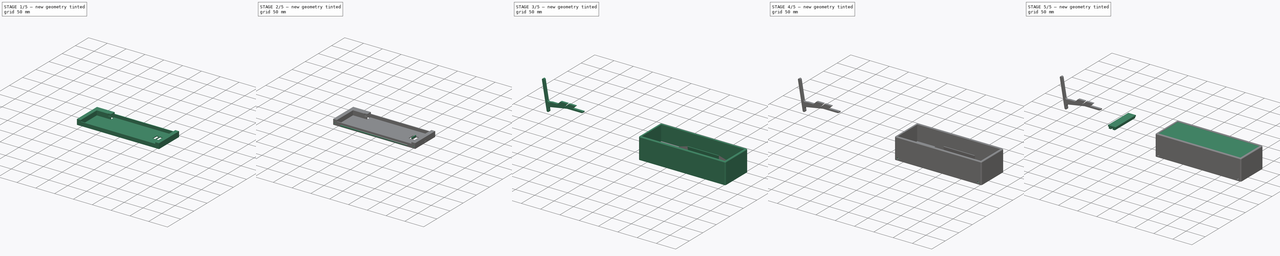
[diagram: build sequence overview — one tinted view per stage of 5, left to right]
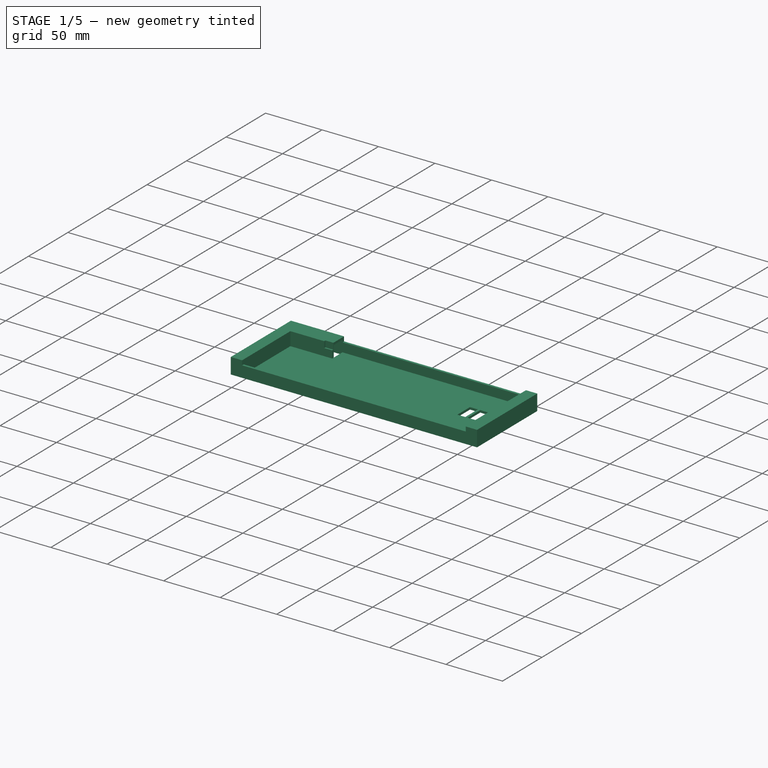
[diagram: stage 1 of 5 — iso view after this stage's code; geometry added in this stage tinted green]
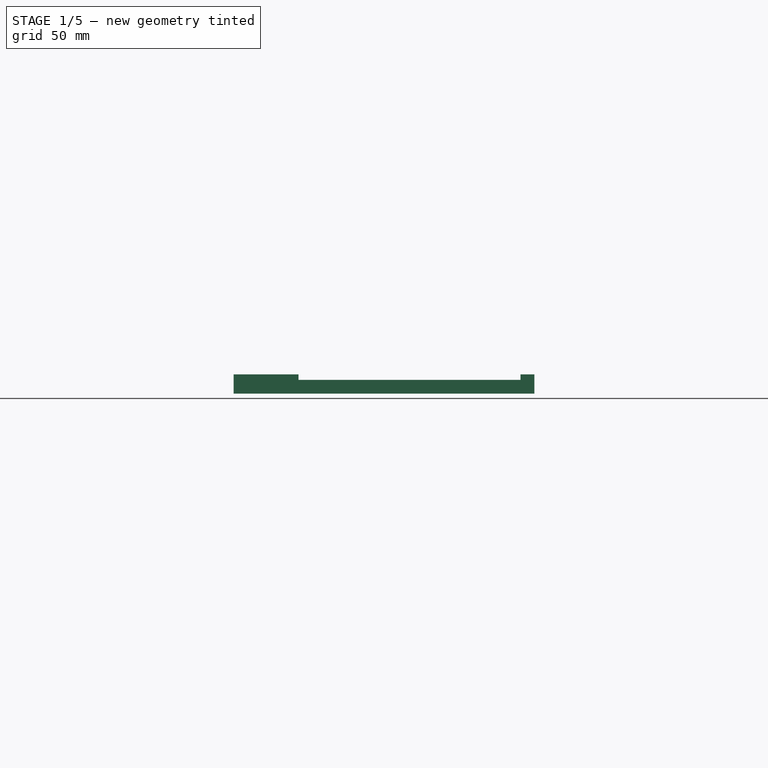
[diagram: stage 1 of 5 — front view after this stage's code; geometry added in this stage tinted green]
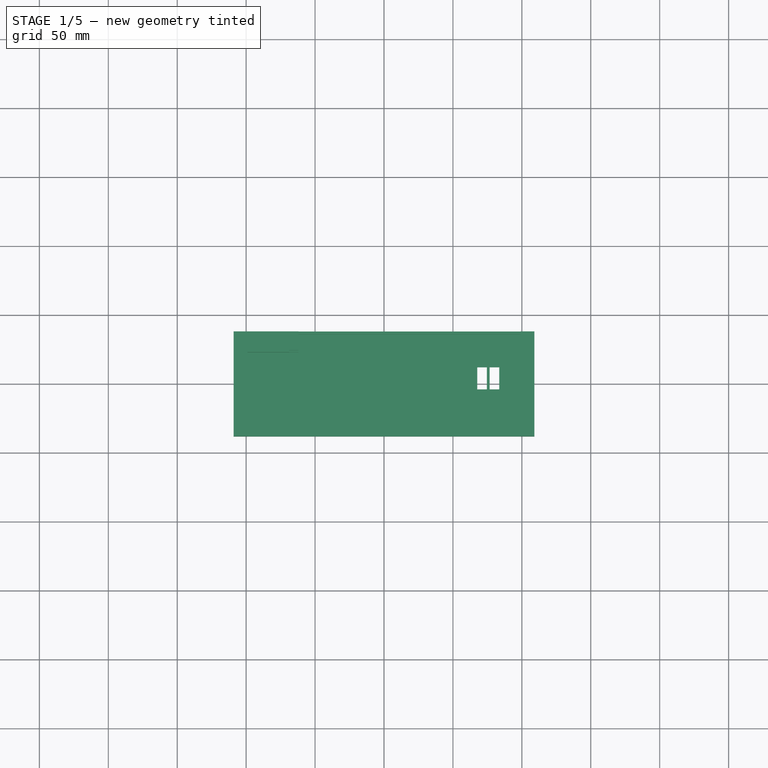
[diagram: stage 1 of 5 — top view after this stage's code; geometry added in this stage tinted green]
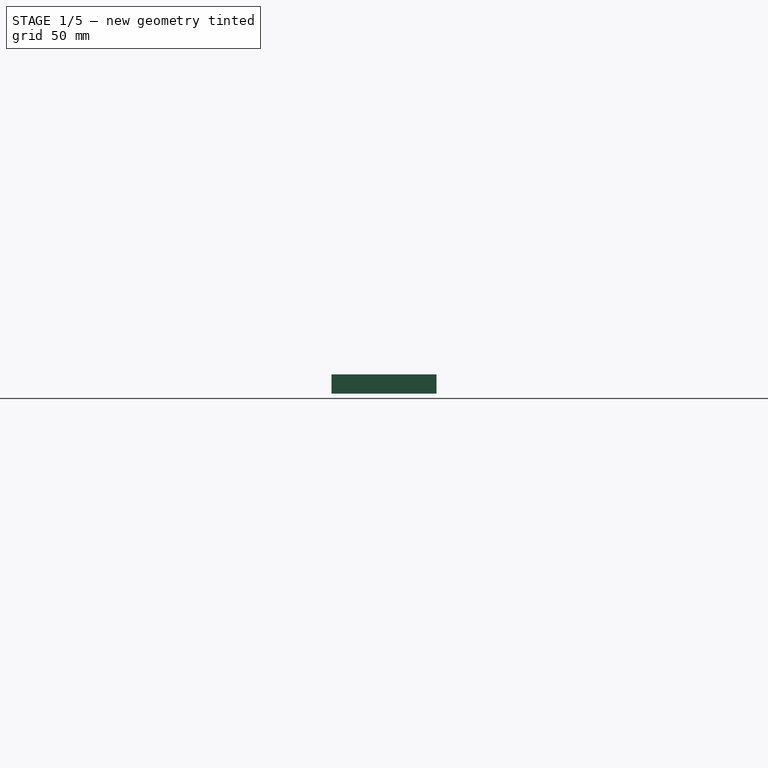
[diagram: stage 1 of 5 — right view after this stage's code; geometry added in this stage tinted green]
FCSTD DOCUMENT  (FreeCAD 1.0R39109 (Git))
Label: case
License: All rights reserved
LicenseURL: https://en.wikipedia.org/wiki/All_rights_reserved
objects: Sketcher::SketchObject×37, PartDesign::Plane×30, PartDesign::Pad×21, PartDesign::Pocket×11, PartDesign::Body×7, PartDesign::Fillet×2, PartDesign::Chamfer×2, PartDesign::ShapeBinder×1
note: 220 computed .brp shape members not serialized (recipe doc carries the construction recipe); baked Part::Feature solids carry a one-line shape summary decoded from their .brp

FEATURE [PartDesign::ShapeBinder] CopyPad010
  Placement = pos=(0,0,-53.5) rot=(0,0,1;0rad)
  TraceSupport = false
FEATURE [PartDesign::Plane] DatumPlane010
  AttachmentSupport = -> [CopyPad010]
  Length = 246.456
  MapMode = 5
  Placement = pos=(0,0,-53.5) rot=(1,0,0;3.14159rad)
  ResizeMode = 0
  Width = 105.256
FEATURE [Sketcher::SketchObject] Sketch015
  ArcFitTolerance = 1e-06
  AttachmentSupport = -> [CopyPad010]
  ExternalGeometry = -> [CopyPad010]
  FullyConstrained = true
  MakeInternals = false
  MapMode = 5
  Placement = pos=(0,0,-53.5) rot=(1,0,0;3.14159rad)
  sketch-geometry (12):
    g0: LineSegment [constr] StartX=-109.25 StartY=38.25 StartZ=0 EndX=-109.25 EndY=38.05 EndZ=0
    g1: LineSegment [constr] StartX=-109.25 StartY=38.05 StartZ=0 EndX=-109.05 EndY=38.05 EndZ=0
    g2: LineSegment [constr] StartX=-109.05 StartY=38.05 StartZ=0 EndX=-109.05 EndY=38.25 EndZ=0
    g3: LineSegment [constr] StartX=-109.05 StartY=38.25 StartZ=0 EndX=-109.25 EndY=38.25 EndZ=0
    g4: LineSegment [constr] StartX=109.25 StartY=-38.25 StartZ=0 EndX=109.25 EndY=-38.05 EndZ=0
    g5: LineSegment [constr] StartX=109.25 StartY=-38.05 StartZ=0 EndX=109.05 EndY=-38.05 EndZ=0
    g6: LineSegment [constr] StartX=109.05 StartY=-38.05 StartZ=0 EndX=109.05 EndY=-38.25 EndZ=0
    g7: LineSegment [constr] StartX=109.05 StartY=-38.25 StartZ=0 EndX=109.25 EndY=-38.25 EndZ=0
    g8: LineSegment StartX=109.05 StartY=-38.05 StartZ=0 EndX=109.05 EndY=38.05 EndZ=0
    g9: LineSegment StartX=109.05 StartY=38.05 StartZ=0 EndX=-109.05 EndY=38.05 EndZ=0
    g10: LineSegment StartX=-109.05 StartY=38.05 StartZ=0 EndX=-109.05 EndY=-38.05 EndZ=0
    g11: LineSegment StartX=-109.05 StartY=-38.05 StartZ=0 EndX=109.05 EndY=-38.05 EndZ=0
  constraints (32):
    c: Coincident(g0,g1)
    c: Coincident(g1,g2)
    c: Coincident(g2,g3)
    c: Coincident(g3,g0)
    c: Vertical(g0)
    c: Vertical(g2)
    c: Horizontal(g1)
    c: Horizontal(g3)
    c: Distance(g0,g2) = 0.2
    c: Distance(g1,g3) = 0.2
    c: Coincident(g0,g-4)
    c: Coincident(g4,g5)
    c: Coincident(g5,g6)
    c: Coincident(g6,g7)
    c: Coincident(g7,g4)
    c: Vertical(g4)
    c: Vertical(g6)
    c: Horizontal(g5)
    c: Horizontal(g7)
    c: Distance(g4,g6) = 0.2
    c: Distance(g5,g7) = 0.2
    c: Coincident(g4,g-6)
    c: Coincident(g8,g9)
    c: Coincident(g9,g10)
    c: Coincident(g10,g11)
    c: Coincident(g11,g8)
    c: Vertical(g8)
    c: Vertical(g10)
    c: Horizontal(g9)
    c: Horizontal(g11)
    c: Coincident(g8,g5)
    c: Coincident(g9,g1)
FEATURE [PartDesign::Pad] Pad011
  Direction = (0,0,-1)
  Length = 2
  Length2 = 10
  Placement = pos=(0,0,-53.5) rot=(0,0,1;0rad)
  Profile = -> Sketch015
  ReferenceAxis = -> Sketch015 [N_Axis]
  Refine = true
  Reversed = true
  Suppressed = false
  Type = 0
FEATURE [Sketcher::SketchObject] Sketch016
  ArcFitTolerance = 1e-06
  AttachmentSupport = -> [Pad011]
  ExternalGeometry = -> [Pad011]
  FullyConstrained = true
  MakeInternals = false
  MapMode = 5
  Placement = pos=(0,0,-51.5) rot=(0,0,1;0rad)
  sketch-geometry (20):
    g0: LineSegment StartX=109.05 StartY=38.05 StartZ=0 EndX=-109.05 EndY=38.05 EndZ=0
    g1: LineSegment StartX=-109.05 StartY=-38.05 StartZ=0 EndX=-109.05 EndY=38.05 EndZ=0
    g2: LineSegment StartX=109.05 StartY=-38.05 StartZ=0 EndX=-109.05 EndY=-38.05 EndZ=0
    g3: LineSegment StartX=109.05 StartY=-38.05 StartZ=0 EndX=109.05 EndY=38.05 EndZ=0
    g4: LineSegment [constr] StartX=109.05 StartY=38.05 StartZ=0 EndX=99.05 EndY=38.05 EndZ=0
    g5: LineSegment [constr] StartX=99.05 StartY=38.05 StartZ=0 EndX=99.05 EndY=36.05 EndZ=0
    g6: LineSegment [constr] StartX=99.05 StartY=36.05 StartZ=0 EndX=109.05 EndY=36.05 EndZ=0
    g7: LineSegment [constr] StartX=109.05 StartY=36.05 StartZ=0 EndX=109.05 EndY=38.05 EndZ=0
    g8: LineSegment [constr] StartX=-109.05 StartY=-38.05 StartZ=0 EndX=-99.05 EndY=-38.05 EndZ=0
    g9: LineSegment [constr] StartX=-99.05 StartY=-38.05 StartZ=0 EndX=-99.05 EndY=-36.05 EndZ=0
    g10: LineSegment [constr] StartX=-99.05 StartY=-36.05 StartZ=0 EndX=-109.05 EndY=-36.05 EndZ=0
    g11: LineSegment [constr] StartX=-109.05 StartY=-36.05 StartZ=0 EndX=-109.05 EndY=-38.05 EndZ=0
    g12: LineSegment StartX=-99.05 StartY=-36.05 StartZ=0 EndX=99.05 EndY=-36.05 EndZ=0
    g13: LineSegment StartX=99.05 StartY=-36.05 StartZ=0 EndX=99.05 EndY=36.05 EndZ=0
    g14: LineSegment StartX=99.05 StartY=36.05 StartZ=0 EndX=-99.05 EndY=36.05 EndZ=0
    g15: LineSegment StartX=-99.05 StartY=36.05 StartZ=0 EndX=-99.05 EndY=-36.05 EndZ=0
    g16: LineSegment StartX=-99.05 StartY=36.05 StartZ=0 EndX=-99.05 EndY=23.05 EndZ=0
    g17: LineSegment StartX=-99.05 StartY=23.05 StartZ=0 EndX=-62.05 EndY=23.05 EndZ=0
    g18: LineSegment StartX=-62.05 StartY=23.05 StartZ=0 EndX=-62.05 EndY=36.05 EndZ=0
    g19: LineSegment StartX=-62.05 StartY=36.05 StartZ=0 EndX=-99.05 EndY=36.05 EndZ=0
  constraints (51):
    c: Coincident(g0,g-6)
    c: Coincident(g0,g-4)
    c: Coincident(g1,g-5)
    c: Coincident(g1,g0)
    c: Coincident(g2,g-6)
    c: Coincident(g2,g1)
    c: Coincident(g3,g2)
    c: Coincident(g3,g0)
    c: Coincident(g4,g5)
    c: Coincident(g5,g6)
    c: Coincident(g6,g7)
    c: Coincident(g7,g4)
    c: Horizontal(g4)
    c: Horizontal(g6)
    c: Vertical(g5)
    c: Vertical(g7)
    c: Distance(g5,g7) = 10
    c: Distance(g4,g6) = 2
    c: Coincident(g4,g0)
    c: Coincident(g8,g9)
    c: Coincident(g9,g10)
    c: Coincident(g10,g11)
    c: Coincident(g11,g8)
    c: Horizontal(g8)
    c: Horizontal(g10)
    c: Vertical(g9)
    c: Vertical(g11)
    c: Distance(g9,g11) = 10
    c: Distance(g8,g10) = 2
    c: Coincident(g8,g1)
    c: Coincident(g12,g13)
    c: Coincident(g13,g14)
    c: Coincident(g14,g15)
    c: Coincident(g15,g12)
    c: Horizontal(g12)
    c: Horizontal(g14)
    c: Vertical(g13)
    c: Vertical(g15)
    c: Coincident(g12,g9)
    c: Coincident(g13,g5)
    c: Coincident(g16,g17)
    c: Coincident(g17,g18)
    c: Coincident(g18,g19)
    c: Coincident(g19,g16)
    c: Vertical(g16)
    c: Vertical(g18)
    c: Horizontal(g17)
    c: Horizontal(g19)
    c: Distance(g16,g18) = 37
    c: Distance(g17,g19) = 13
    c: Coincident(g16,g14)
FEATURE [Sketcher::SketchObject] Sketch026
  ArcFitTolerance = 1e-06
  AttachmentSupport = -> [Pad011]
  ExternalGeometry = -> [Pad011]
  FullyConstrained = true
  MakeInternals = false
  MapMode = 5
  Placement = pos=(0,0,-53.5) rot=(1,0,0;3.14159rad)
  sketch-geometry (14):
    g0: LineSegment [constr] StartX=109.05 StartY=-38.05 StartZ=0 EndX=109.05 EndY=-12.15 EndZ=0
    g1: LineSegment [constr] StartX=83.65 StartY=-38.05 StartZ=0 EndX=109.05 EndY=-38.05 EndZ=0
    g2: LineSegment StartX=67.65 StartY=3.85 StartZ=0 EndX=67.65 EndY=-12.15 EndZ=0
    g3: LineSegment StartX=67.65 StartY=-12.15 StartZ=0 EndX=74.65 EndY=-12.15 EndZ=0
    g4: LineSegment StartX=74.65 StartY=-12.15 StartZ=0 EndX=74.65 EndY=3.85 EndZ=0
    g5: LineSegment StartX=74.65 StartY=3.85 StartZ=0 EndX=67.65 EndY=3.85 EndZ=0
    g6: LineSegment StartX=83.65 StartY=3.85 StartZ=0 EndX=76.65 EndY=3.85 EndZ=0
    g7: LineSegment StartX=76.65 StartY=3.85 StartZ=0 EndX=76.65 EndY=-12.15 EndZ=0
    g8: LineSegment StartX=76.65 StartY=-12.15 StartZ=0 EndX=83.65 EndY=-12.15 EndZ=0
    g9: LineSegment StartX=83.65 StartY=-12.15 StartZ=0 EndX=83.65 EndY=3.85 EndZ=0
    g10: LineSegment [constr] StartX=74.65 StartY=3.85 StartZ=0 EndX=76.65 EndY=3.85 EndZ=0
    g11: LineSegment [constr] StartX=74.65 StartY=-12.15 StartZ=0 EndX=76.65 EndY=-12.15 EndZ=0
    g12: LineSegment [constr] StartX=83.65 StartY=-12.15 StartZ=0 EndX=109.05 EndY=-12.15 EndZ=0
    g13: LineSegment [constr] StartX=83.65 StartY=-12.15 StartZ=0 EndX=83.65 EndY=-38.05 EndZ=0
  constraints (38):
    c: Coincident(g1,g0)
    c: Vertical(g0)
    c: Horizontal(g1)
    c: Distance(g0,g1) = 25.4
    c: Distance(g0,g1) = 25.9
    c: Coincident(g2,g3)
    c: Coincident(g3,g4)
    c: Coincident(g4,g5)
    c: Coincident(g5,g2)
    c: Vertical(g2)
    c: Vertical(g4)
    c: Horizontal(g3)
    c: Horizontal(g5)
    c: Distance(g2,g4) = 7
    c: Coincident(g6,g7)
    c: Coincident(g7,g8)
    c: Coincident(g8,g9)
    c: Coincident(g9,g6)
    c: Horizontal(g6)
    c: Horizontal(g8)
    c: Vertical(g7)
    c: Vertical(g9)
    c: Distance(g7,g9) = 7
    c: Coincident(g10,g4)
    c: Coincident(g10,g6)
    c: Horizontal(g10)
    c: Coincident(g11,g3)
    c: Coincident(g11,g7)
    c: Horizontal(g11)
    c: DistanceY(g2,g2) = 16
    c: DistanceX(g11,g11) = 2
    c: Coincident(g12,g8)
    c: Coincident(g12,g0)
    c: Horizontal(g12)
    c: Coincident(g13,g8)
    c: Coincident(g13,g1)
    c: Vertical(g13)
    c: Coincident(g0,g-6)
FEATURE [PartDesign::Pocket] Pocket008
  BaseFeature = -> Pad011
  Direction = (0,0,1)
  Length = 5
  Length2 = 5
  Placement = pos=(0,0,-53.5) rot=(0,0,1;0rad)
  Profile = -> Sketch026
  ReferenceAxis = -> Sketch026 [N_Axis]
  Refine = true
  Suppressed = false
  Type = 0
FEATURE [PartDesign::Pad] Pad012
  BaseFeature = -> Pocket008
  Direction = (0,0,1)
  Length = 8
  Length2 = 10
  Placement = pos=(0,0,-53.5) rot=(0,0,1;0rad)
  Profile = -> Sketch016
  ReferenceAxis = -> Sketch016 [N_Axis]
  Refine = true
  Suppressed = false
  Type = 0
FEATURE [PartDesign::Body] Body  label="body"
  AllowCompound = false
  Group = -> [Sketch,Pad,DatumPlane,Sketch001,Pad001,Fillet,Fillet001,DatumPlane002,Sketch007,DatumPlane003,Sketch008,Pad007,DatumPlane004,Sketch009,DatumPlane005,Sketch010,Pad008,DatumPlane006,Sketch011,DatumPlane007,Sketch012,Pad009,DatumPlane008,Sketch013,DatumPlane009,Sketch014,Pad010,DatumPlane016,Sketch034,Pocket011,DatumPlane017,Sketch035,Pocket012,DatumPlane018,Sketch036,Pocket013,DatumPlane025,+5 more]
  Origin = -> Origin
  Tip = -> Pocket017
FEATURE [Sketcher::SketchObject] Sketch030
  ArcFitTolerance = 1e-06
  AttachmentSupport = -> [DatumPlane012]
  ExternalGeometry = -> [Pad012]
  FullyConstrained = true
  MakeInternals = false
  MapMode = 5
  Placement = pos=(0,0,-43.5) rot=(0,0,1;0rad)
  sketch-geometry (12):
    g0: LineSegment StartX=109.05 StartY=38.05 StartZ=0 EndX=99.05 EndY=38.05 EndZ=0
    g1: LineSegment StartX=99.05 StartY=38.05 StartZ=0 EndX=99.05 EndY=-38.05 EndZ=0
    g2: LineSegment StartX=99.05 StartY=-38.05 StartZ=0 EndX=109.05 EndY=-38.05 EndZ=0
    g3: LineSegment StartX=109.05 StartY=-38.05 StartZ=0 EndX=109.05 EndY=38.05 EndZ=0
    g4: LineSegment StartX=-62.05 StartY=23.05 StartZ=0 EndX=-62.05 EndY=38.05 EndZ=0
    g5: LineSegment StartX=-62.05 StartY=38.05 StartZ=0 EndX=-109.05 EndY=38.05 EndZ=0
    g6: LineSegment StartX=-109.05 StartY=38.05 StartZ=0 EndX=-109.05 EndY=23.05 EndZ=0
    g7: LineSegment StartX=-109.05 StartY=23.05 StartZ=0 EndX=-62.05 EndY=23.05 EndZ=0
    g8: LineSegment StartX=-99.05 StartY=23.05 StartZ=0 EndX=-109.05 EndY=23.05 EndZ=0
    g9: LineSegment StartX=-109.05 StartY=23.05 StartZ=0 EndX=-109.05 EndY=-38.05 EndZ=0
    g10: LineSegment StartX=-109.05 StartY=-38.05 StartZ=0 EndX=-99.05 EndY=-38.05 EndZ=0
    g11: LineSegment StartX=-99.05 StartY=-38.05 StartZ=0 EndX=-99.05 EndY=23.05 EndZ=0
  constraints (31):
    c: Coincident(g0,g1)
    c: Coincident(g1,g2)
    c: Coincident(g2,g3)
    c: Coincident(g3,g0)
    c: Horizontal(g0)
    c: Horizontal(g2)
    c: Vertical(g1)
    c: Vertical(g3)
    c: Distance(g1,g3) = 10
    c: Coincident(g0,g-5)
    c: PointOnObject(g1,g-12)
    c: Coincident(g4,g5)
    c: Coincident(g5,g6)
    c: Coincident(g6,g7)
    c: Coincident(g7,g4)
    c: Vertical(g4)
    c: Vertical(g6)
    c: Horizontal(g5)
    c: Horizontal(g7)
    c: Coincident(g4,g-8)
    c: Coincident(g5,g-10)
    c: Coincident(g8,g9)
    c: Coincident(g9,g10)
    c: Coincident(g10,g11)
    c: Coincident(g11,g8)
    c: Horizontal(g8)
    c: Horizontal(g10)
    c: Vertical(g9)
    c: Vertical(g11)
    c: Coincident(g8,g-9)
    c: Coincident(g9,g-12)
FEATURE [PartDesign::Pad] Pad015
  BaseFeature = -> Pad012
  Direction = (0,0,1)
  Length = 4
  Length2 = 10
  Placement = pos=(0,0,-53.5) rot=(0,0,1;0rad)
  Profile = -> Sketch030
  ReferenceAxis = -> Sketch030 [N_Axis]
  Refine = true
  Suppressed = false
  Type = 0
FEATURE [Sketcher::SketchObject] Sketch031
  ArcFitTolerance = 1e-06
  AttachmentSupport = -> [Pad015]
  ExternalGeometry = -> [Sketch015]
  FullyConstrained = true
  MakeInternals = false
  MapMode = 5
  Placement = pos=(0,0,-53.5) rot=(1,0,0;3.14159rad)
  sketch-geometry (8):
    g0: LineSegment [constr] StartX=-109.05 StartY=-38.05 StartZ=0 EndX=-107.05 EndY=-38.05 EndZ=0
    g1: LineSegment [constr] StartX=-107.05 StartY=-38.05 StartZ=0 EndX=-107.05 EndY=-36.05 EndZ=0
    g2: LineSegment [constr] StartX=-107.05 StartY=-36.05 StartZ=0 EndX=-109.05 EndY=-36.05 EndZ=0
    g3: LineSegment [constr] StartX=-109.05 StartY=-36.05 StartZ=0 EndX=-109.05 EndY=-38.05 EndZ=0
    g4: LineSegment StartX=-107.05 StartY=-36.05 StartZ=0 EndX=-62.05 EndY=-36.05 EndZ=0
    g5: LineSegment StartX=-62.05 StartY=-36.05 StartZ=0 EndX=-62.05 EndY=-25.05 EndZ=0
    g6: LineSegment StartX=-62.05 StartY=-25.05 StartZ=0 EndX=-107.05 EndY=-25.05 EndZ=0
    g7: LineSegment StartX=-107.05 StartY=-25.05 StartZ=0 EndX=-107.05 EndY=-36.05 EndZ=0
  constraints (22):
    c: Coincident(g0,g1)
    c: Coincident(g1,g2)
    c: Coincident(g2,g3)
    c: Coincident(g3,g0)
    c: Horizontal(g0)
    c: Horizontal(g2)
    c: Vertical(g1)
    c: Vertical(g3)
    c: Distance(g1,g3) = 2
    c: Distance(g0,g2) = 2
    c: Coincident(g4,g5)
    c: Coincident(g5,g6)
    c: Coincident(g6,g7)
    c: Coincident(g7,g4)
    c: Horizontal(g4)
    c: Horizontal(g6)
    c: Vertical(g5)
    c: Vertical(g7)
    c: Distance(g5,g7) = 45
    c: Distance(g4,g6) = 11
    c: Coincident(g4,g1)
    c: Coincident(g0,g-4)
FEATURE [PartDesign::Plane] DatumPlane013
  AttachmentSupport = -> [Pad015]
  Length = 246.456
  MapMode = 5
  Placement = pos=(0,0,-53.5) rot=(1,0,0;3.14159rad)
  ResizeMode = 0
  Width = 105.256
FEATURE [PartDesign::Pocket] Pocket
  BaseFeature = -> Pad015
  Direction = (0,0,1)
  Length = 12
  Length2 = 5
  Placement = pos=(0,0,-53.5) rot=(0,0,1;0rad)
  Profile = -> Sketch031
  ReferenceAxis = -> Sketch031 [N_Axis]
  Refine = true
  Suppressed = false
  Type = 0
FEATURE [Sketcher::SketchObject] Sketch032
  ArcFitTolerance = 1e-06
  AttachmentSupport = -> [Pocket]
  ExternalGeometry = -> [Pocket]
  FullyConstrained = true
  MakeInternals = false
  MapMode = 5
  Placement = pos=(0,0,-39.5) rot=(0,0,1;0rad)
  sketch-geometry (4):
    g0: LineSegment StartX=-62.05 StartY=23.05 StartZ=0 EndX=-62.05 EndY=24.55 EndZ=0
    g1: LineSegment StartX=-62.05 StartY=24.55 StartZ=0 EndX=-69.05 EndY=24.55 EndZ=0
    g2: LineSegment StartX=-69.05 StartY=24.55 StartZ=0 EndX=-69.05 EndY=23.05 EndZ=0
    g3: LineSegment StartX=-69.05 StartY=23.05 StartZ=0 EndX=-62.05 EndY=23.05 EndZ=0
  constraints (11):
    c: Coincident(g0,g1)
    c: Coincident(g1,g2)
    c: Coincident(g2,g3)
    c: Coincident(g3,g0)
    c: Vertical(g0)
    c: Vertical(g2)
    c: Horizontal(g1)
    c: Horizontal(g3)
    c: Coincident(g0,g-6)
    c: Distance(g-3,g1) = 13.5
    c: Distance(g-4,g2) = 40
FEATURE [PartDesign::Plane] DatumPlane014
  AttachmentSupport = -> [Pocket]
  Length = 246.456
  MapMode = 5
  Placement = pos=(0,0,-39.5) rot=(0,0,1;0rad)
  ResizeMode = 0
  Width = 105.256
FEATURE [PartDesign::Pocket] Pocket009
  BaseFeature = -> Pocket
  Direction = (0,0,-1)
  Length = 5.5
  Length2 = 5
  Placement = pos=(0,0,-53.5) rot=(0,0,1;0rad)
  Profile = -> Sketch032
  ReferenceAxis = -> Sketch032 [N_Axis]
  Refine = true
  Suppressed = false
  Type = 0
FEATURE [PartDesign::Plane] DatumPlane020
  AttachmentSupport = -> [Pocket009]
  Length = 246.456
  MapMode = 5
  Placement = pos=(0,0,-53.5) rot=(1,0,0;3.14159rad)
  ResizeMode = 0
  Width = 105.256
FEATURE [Sketcher::SketchObject] Sketch038
  ArcFitTolerance = 1e-06
  AttachmentSupport = -> [Pocket009]
  ExternalGeometry = -> [Sketch015]
  FullyConstrained = true
  MakeInternals = false
  MapMode = 5
  Placement = pos=(0,0,-53.5) rot=(1,0,0;3.14159rad)
  sketch-geometry (16):
    g0: LineSegment [constr] StartX=109.05 StartY=38.05 StartZ=0 EndX=101.05 EndY=38.05 EndZ=0
    g1: LineSegment [constr] StartX=101.05 StartY=38.05 StartZ=0 EndX=101.05 EndY=26.05 EndZ=0
    g2: LineSegment [constr] StartX=101.05 StartY=26.05 StartZ=0 EndX=109.05 EndY=26.05 EndZ=0
    g3: LineSegment [constr] StartX=109.05 StartY=26.05 StartZ=0 EndX=109.05 EndY=38.05 EndZ=0
    g4: LineSegment [constr] StartX=-109.05 StartY=38.05 StartZ=0 EndX=-109.05 EndY=26.05 EndZ=0
    g5: LineSegment [constr] StartX=-109.05 StartY=26.05 StartZ=0 EndX=-101.05 EndY=26.05 EndZ=0
    g6: LineSegment [constr] StartX=-101.05 StartY=26.05 StartZ=0 EndX=-101.05 EndY=38.05 EndZ=0
    g7: LineSegment [constr] StartX=-101.05 StartY=38.05 StartZ=0 EndX=-109.05 EndY=38.05 EndZ=0
    g8: LineSegment StartX=-101.05 StartY=26.05 StartZ=0 EndX=-107.05 EndY=26.05 EndZ=0
    g9: LineSegment StartX=-107.05 StartY=26.05 StartZ=0 EndX=-107.05 EndY=-13.95 EndZ=0
    g10: LineSegment StartX=-107.05 StartY=-13.95 StartZ=0 EndX=-101.05 EndY=-13.95 EndZ=0
    g11: LineSegment StartX=-101.05 StartY=-13.95 StartZ=0 EndX=-101.05 EndY=26.05 EndZ=0
    g12: LineSegment StartX=101.05 StartY=26.05 StartZ=0 EndX=101.05 EndY=-13.95 EndZ=0
    g13: LineSegment StartX=101.05 StartY=-13.95 StartZ=0 EndX=107.05 EndY=-13.95 EndZ=0
    g14: LineSegment StartX=107.05 StartY=-13.95 StartZ=0 EndX=107.05 EndY=26.05 EndZ=0
    g15: LineSegment StartX=107.05 StartY=26.05 StartZ=0 EndX=101.05 EndY=26.05 EndZ=0
  constraints (44):
    c: Coincident(g0,g1)
    c: Coincident(g1,g2)
    c: Coincident(g2,g3)
    c: Coincident(g3,g0)
    c: Horizontal(g0)
    c: Horizontal(g2)
    c: Vertical(g1)
    c: Vertical(g3)
    c: Distance(g1,g3) = 8
    c: Distance(g0,g2) = 12
    c: Coincident(g0,g-4)
    c: Coincident(g4,g5)
    c: Coincident(g5,g6)
    c: Coincident(g6,g7)
    c: Coincident(g7,g4)
    c: Vertical(g4)
    c: Vertical(g6)
    c: Horizontal(g5)
    c: Horizontal(g7)
    c: Distance(g4,g6) = 8
    c: Distance(g5,g7) = 12
    c: Coincident(g4,g-5)
    c: Coincident(g8,g9)
    c: Coincident(g9,g10)
    c: Coincident(g10,g11)
    c: Coincident(g11,g8)
    c: Horizontal(g8)
    c: Horizontal(g10)
    c: Vertical(g9)
    c: Vertical(g11)
    c: Distance(g9,g11) = 6
    c: Distance(g8,g10) = 40
    c: Coincident(g8,g5)
    c: Coincident(g12,g13)
    c: Coincident(g13,g14)
    c: Coincident(g14,g15)
    c: Coincident(g15,g12)
    c: Vertical(g12)
    c: Vertical(g14)
    c: Horizontal(g13)
    c: Horizontal(g15)
    c: Distance(g12,g14) = 6
    c: Distance(g13,g15) = 40
    c: Coincident(g12,g1)
FEATURE [PartDesign::Plane] DatumPlane021
  AttachmentSupport = -> [Sketch038]
  Length = 94.64
  MapMode = 7
  Placement = pos=(-107.05,13.95,-53.5) rot=(0.57735,-0.57735,-0.57735;2.0944rad)
  ResizeMode = 0
  Width = 94.2399
FEATURE [Sketcher::SketchObject] Sketch039
  ArcFitTolerance = 1e-06
  AttachmentSupport = -> [DatumPlane021]
  ExternalGeometry = -> [Sketch038]
  FullyConstrained = true
  MakeInternals = false
  MapMode = 5
  Placement = pos=(-107.05,13.95,-53.5) rot=(0.57735,-0.57735,-0.57735;2.0944rad)
  sketch-geometry (14):
    g0: LineSegment [constr] StartX=0 StartY=0 StartZ=0 EndX=32 EndY=0 EndZ=0
    g1: LineSegment [constr] StartX=32 StartY=0 StartZ=0 EndX=32 EndY=8 EndZ=0
    g2: LineSegment [constr] StartX=32 StartY=8 StartZ=0 EndX=0 EndY=8 EndZ=0
    g3: LineSegment [constr] StartX=0 StartY=8 StartZ=0 EndX=0 EndY=0 EndZ=0
    g4: LineSegment StartX=32 StartY=8 StartZ=0 EndX=40 EndY=0 EndZ=0
    g5: LineSegment StartX=0 StartY=0 StartZ=0 EndX=-8 EndY=8 EndZ=0
    g6: LineSegment StartX=32 StartY=8 StartZ=0 EndX=13 EndY=8 EndZ=0
    g7: LineSegment StartX=40 StartY=0 StartZ=0 EndX=21 EndY=0 EndZ=0
    g8: LineSegment StartX=21 StartY=0 StartZ=0 EndX=13 EndY=8 EndZ=0
    g9: LineSegment StartX=-8 StartY=8 StartZ=0 EndX=11 EndY=8 EndZ=0
    g10: LineSegment StartX=0 StartY=0 StartZ=0 EndX=19 EndY=0 EndZ=0
    g11: LineSegment StartX=11 StartY=8 StartZ=0 EndX=19 EndY=0 EndZ=0
    g12: LineSegment [constr] StartX=19 StartY=0 StartZ=0 EndX=21 EndY=0 EndZ=0
    g13: LineSegment [constr] StartX=13 StartY=8 StartZ=0 EndX=11 EndY=8 EndZ=0
  constraints (36):
    c: Coincident(g0,g1)
    c: Coincident(g1,g2)
    c: Coincident(g2,g3)
    c: Coincident(g3,g0)
    c: Horizontal(g0)
    c: Horizontal(g2)
    c: Vertical(g1)
    c: Vertical(g3)
    c: Distance(g1,g3) = 32
    c: Distance(g0,g2) = 8
    c: Coincident(g0,g-1)
    c: Coincident(g4,g1)
    c: Coincident(g4,g-5)
    c: Coincident(g5,g0)
    c: Distance(g6) = 19
    c: Coincident(g6,g1)
    c: PointOnObject(g6,g2)
    c: Distance(g7) = 19
    c: Coincident(g7,g4)
    c: PointOnObject(g7,g0)
    c: Coincident(g8,g7)
    c: Coincident(g8,g6)
    c: Distance(g9) = 19
    c: Coincident(g9,g5)
    c: PointOnObject(g9,g2)
    c: Horizontal(g9)
    c: Distance(g10) = 19
    c: Coincident(g10,g0)
    c: PointOnObject(g10,g0)
    c: Coincident(g11,g9)
    c: Coincident(g11,g10)
    c: Coincident(g12,g10)
    c: Coincident(g12,g7)
    c: Coincident(g13,g6)
    c: Coincident(g13,g9)
    c: DistanceX(g9,g6) = 2
FEATURE [PartDesign::Pocket] Pocket014
  BaseFeature = -> Pocket009
  Direction = (1,0,0)
  Length = 6
  Length2 = 5
  Placement = pos=(0,0,-53.5) rot=(0,0,1;0rad)
  Profile = -> Sketch039
  ReferenceAxis = -> Sketch039 [N_Axis]
  Refine = true
  Suppressed = false
  Type = 0
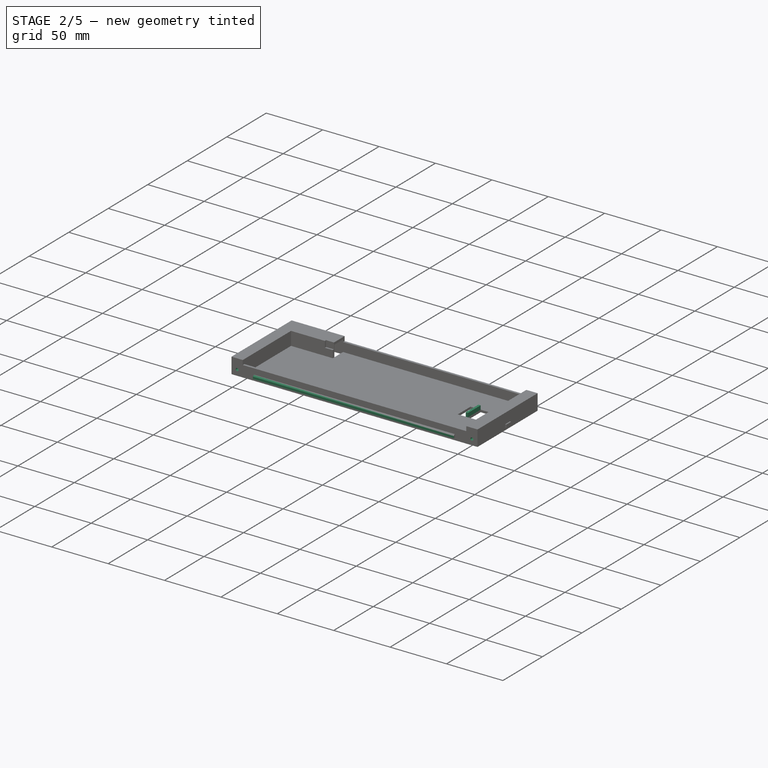
[diagram: stage 2 of 5 — iso view after this stage's code; geometry added in this stage tinted green]
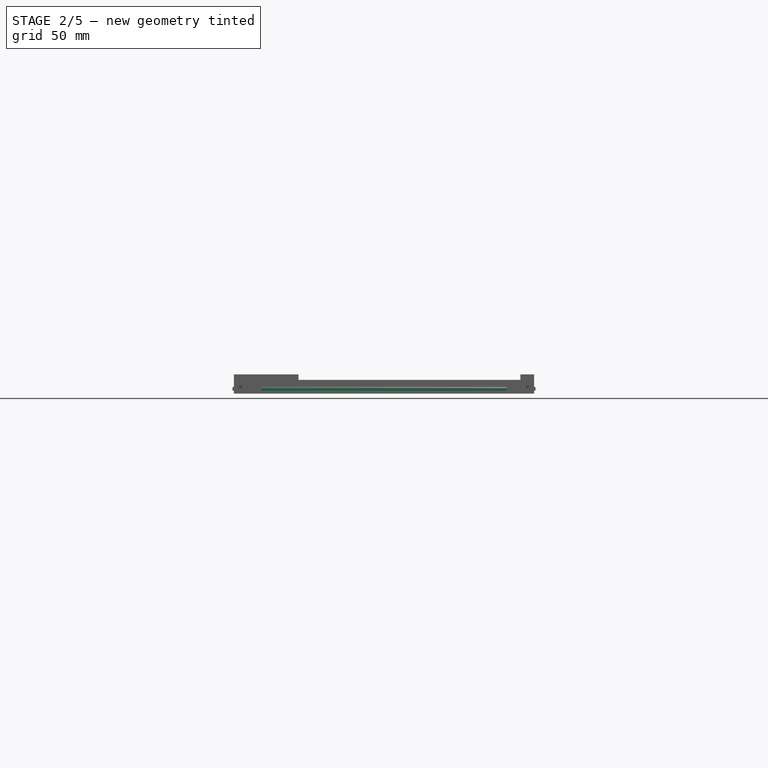
[diagram: stage 2 of 5 — front view after this stage's code; geometry added in this stage tinted green]
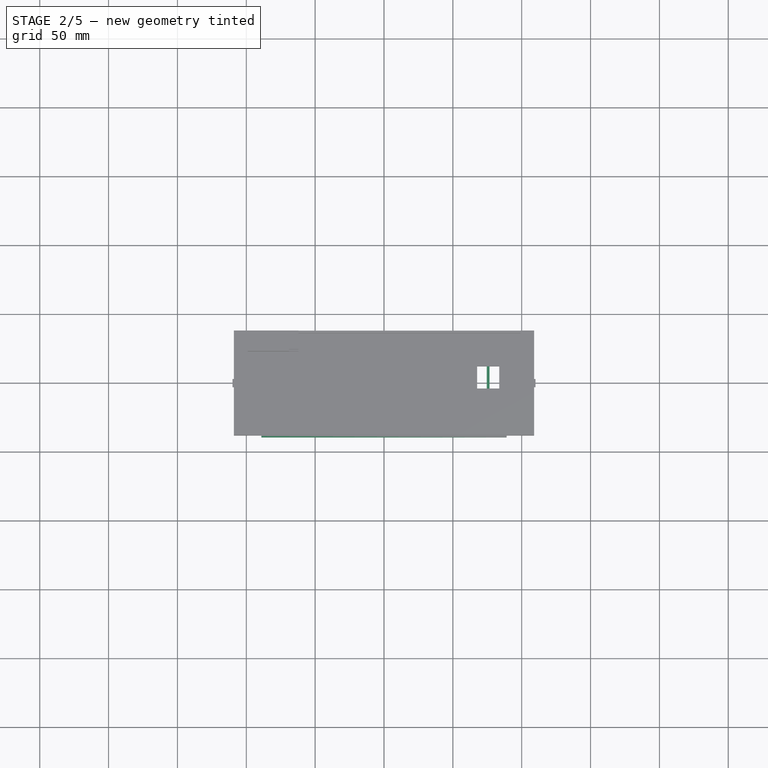
[diagram: stage 2 of 5 — top view after this stage's code; geometry added in this stage tinted green]
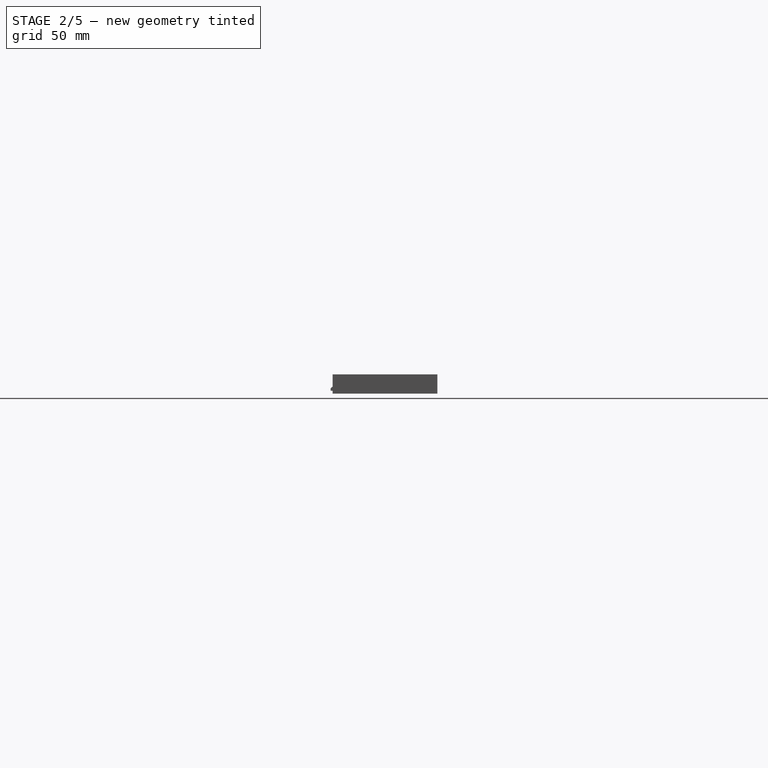
[diagram: stage 2 of 5 — right view after this stage's code; geometry added in this stage tinted green]
FEATURE [PartDesign::Plane] DatumPlane022
  AttachmentSupport = -> [Sketch038]
  Length = 94.64
  MapMode = 7
  Placement = pos=(107.05,-26.05,-53.5) rot=(0.57735,0.57735,0.57735;2.0944rad)
  ResizeMode = 0
  Width = 94.2399
FEATURE [Sketcher::SketchObject] Sketch040
  ArcFitTolerance = 1e-06
  AttachmentSupport = -> [DatumPlane022]
  ExternalGeometry = -> [Sketch038]
  FullyConstrained = true
  MakeInternals = false
  MapMode = 5
  Placement = pos=(107.05,-26.05,-53.5) rot=(0.57735,0.57735,0.57735;2.0944rad)
  sketch-geometry (25):
    g0: LineSegment [constr] StartX=40 StartY=0 StartZ=0 EndX=48 EndY=0 EndZ=0
    g1: LineSegment [constr] StartX=48 StartY=0 StartZ=0 EndX=48 EndY=8 EndZ=0
    g2: LineSegment [constr] StartX=48 StartY=8 StartZ=0 EndX=40 EndY=8 EndZ=0
    g3: LineSegment [constr] StartX=40 StartY=8 StartZ=0 EndX=40 EndY=0 EndZ=0
    g4: LineSegment [constr] StartX=0 StartY=0 StartZ=0 EndX=8 EndY=0 EndZ=0
    g5: LineSegment [constr] StartX=8 StartY=0 StartZ=0 EndX=8 EndY=8 EndZ=0
    g6: LineSegment [constr] StartX=8 StartY=8 StartZ=0 EndX=0 EndY=8 EndZ=0
    g7: LineSegment [constr] StartX=0 StartY=8 StartZ=0 EndX=0 EndY=0 EndZ=0
    g8: LineSegment StartX=0 StartY=0 StartZ=0 EndX=8 EndY=8 EndZ=0
    g9: LineSegment StartX=40 StartY=0 StartZ=0 EndX=48 EndY=8 EndZ=0
    g10: LineSegment StartX=48 StartY=8 StartZ=0 EndX=29 EndY=8 EndZ=0
    g11: LineSegment StartX=8 StartY=8 StartZ=0 EndX=27 EndY=8 EndZ=0
    g12: LineSegment [constr] StartX=27 StartY=8 StartZ=0 EndX=29 EndY=8 EndZ=0
    g13: LineSegment [constr] StartX=27 StartY=8 StartZ=0 EndX=19 EndY=8 EndZ=0
    g14: LineSegment [constr] StartX=19 StartY=8 StartZ=0 EndX=19 EndY=0 EndZ=0
    g15: LineSegment [constr] StartX=19 StartY=0 StartZ=0 EndX=27 EndY=0 EndZ=0
    g16: LineSegment [constr] StartX=27 StartY=0 StartZ=0 EndX=27 EndY=8 EndZ=0
    g17: LineSegment StartX=0 StartY=0 StartZ=0 EndX=19 EndY=0 EndZ=0
    g18: LineSegment StartX=19 StartY=0 StartZ=0 EndX=27 EndY=8 EndZ=0
    g19: LineSegment [constr] StartX=29 StartY=8 StartZ=0 EndX=21 EndY=8 EndZ=0
    g20: LineSegment [constr] StartX=21 StartY=8 StartZ=0 EndX=21 EndY=0 EndZ=0
    g21: LineSegment [constr] StartX=21 StartY=0 StartZ=0 EndX=29 EndY=0 EndZ=0
    g22: LineSegment [constr] StartX=29 StartY=0 StartZ=0 EndX=29 EndY=8 EndZ=0
    g23: LineSegment StartX=40 StartY=0 StartZ=0 EndX=21 EndY=0 EndZ=0
    g24: LineSegment StartX=21 StartY=0 StartZ=0 EndX=29 EndY=8 EndZ=0
  constraints (64):
    c: Coincident(g0,g1)
    c: Coincident(g1,g2)
    c: Coincident(g2,g3)
    c: Coincident(g3,g0)
    c: Horizontal(g0)
    c: Horizontal(g2)
    c: Vertical(g1)
    c: Vertical(g3)
    c: Distance(g1,g3) = 8
    c: Distance(g0,g2) = 8
    c: Coincident(g0,g-4)
    c: Coincident(g4,g5)
    c: Coincident(g5,g6)
    c: Coincident(g6,g7)
    c: Coincident(g7,g4)
    c: Horizontal(g4)
    c: Horizontal(g6)
    c: Vertical(g5)
    c: Vertical(g7)
    c: Distance(g5,g7) = 8
    c: Distance(g4,g6) = 8
    c: Coincident(g4,g-1)
    c: Coincident(g8,g4)
    c: Coincident(g8,g5)
    c: Coincident(g9,g0)
    c: Coincident(g9,g1)
    c: Distance(g10) = 19
    c: Coincident(g10,g1)
    c: Horizontal(g10)
    c: Distance(g11) = 19
    c: Coincident(g11,g5)
    c: Horizontal(g11)
    c: Coincident(g12,g11)
    c: Coincident(g12,g10)
    c: Coincident(g13,g14)
    c: Coincident(g14,g15)
    c: Coincident(g15,g16)
    c: Coincident(g16,g13)
    c: Horizontal(g13)
    c: Horizontal(g15)
    c: Vertical(g14)
    c: Vertical(g16)
    c: Distance(g14,g16) = 8
    c: Coincident(g13,g11)
    c: PointOnObject(g14,g-1)
    c: Coincident(g17,g4)
    c: Coincident(g17,g14)
    c: Coincident(g18,g14)
    c: Coincident(g18,g11)
    c: Coincident(g19,g20)
    c: Coincident(g20,g21)
    c: Coincident(g21,g22)
    c: Coincident(g22,g19)
    c: Horizontal(g19)
    c: Horizontal(g21)
    c: Vertical(g20)
    c: Vertical(g22)
    c: Distance(g20,g22) = 8
    c: Coincident(g19,g10)
    c: PointOnObject(g20,g15)
    c: Coincident(g23,g0)
    c: Coincident(g23,g20)
    c: Coincident(g24,g20)
    c: Coincident(g24,g10)
FEATURE [PartDesign::Pocket] Pocket015
  BaseFeature = -> Pocket014
  Direction = (-1,0,0)
  Length = 6
  Length2 = 5
  Placement = pos=(0,0,-53.5) rot=(0,0,1;0rad)
  Profile = -> Sketch040
  ReferenceAxis = -> Sketch040 [N_Axis]
  Refine = true
  Suppressed = false
  Type = 0
FEATURE [Sketcher::SketchObject] Sketch041
  ArcFitTolerance = 1e-06
  AttachmentSupport = -> [Pocket015]
  ExternalGeometry = -> [Sketch015]
  FullyConstrained = true
  MakeInternals = false
  MapMode = 5
  Placement = pos=(109.05,0,-53.5) rot=(0.57735,0.57735,0.57735;2.0944rad)
  sketch-geometry (8):
    g0: LineSegment [constr] StartX=0 StartY=0 StartZ=0 EndX=3 EndY=0 EndZ=0
    g1: LineSegment [constr] StartX=3 StartY=0 StartZ=0 EndX=3 EndY=2.2 EndZ=0
    g2: LineSegment [constr] StartX=3 StartY=2.2 StartZ=0 EndX=0 EndY=2.2 EndZ=0
    g3: LineSegment [constr] StartX=0 StartY=2.2 StartZ=0 EndX=0 EndY=0 EndZ=0
    g4: LineSegment StartX=3 StartY=2.2 StartZ=0 EndX=3 EndY=4.8 EndZ=0
    g5: LineSegment StartX=3 StartY=4.8 StartZ=0 EndX=-3 EndY=4.8 EndZ=0
    g6: LineSegment StartX=-3 StartY=4.8 StartZ=0 EndX=-3 EndY=2.2 EndZ=0
    g7: LineSegment StartX=-3 StartY=2.2 StartZ=0 EndX=3 EndY=2.2 EndZ=0
  constraints (22):
    c: Coincident(g0,g1)
    c: Coincident(g1,g2)
    c: Coincident(g2,g3)
    c: Coincident(g3,g0)
    c: Horizontal(g0)
    c: Horizontal(g2)
    c: Vertical(g1)
    c: Vertical(g3)
    c: Distance(g1,g3) = 3
    c: Distance(g0,g2) = 2.2
    c: Coincident(g0,g-1)
    c: Coincident(g4,g5)
    c: Coincident(g5,g6)
    c: Coincident(g6,g7)
    c: Coincident(g7,g4)
    c: Vertical(g4)
    c: Vertical(g6)
    c: Horizontal(g5)
    c: Horizontal(g7)
    c: Distance(g4,g6) = 6
    c: Distance(g5,g7) = 2.6
    c: Coincident(g4,g1)
FEATURE [PartDesign::Plane] DatumPlane023
  AttachmentSupport = -> [Pocket015]
  Length = 94.64
  MapMode = 5
  Placement = pos=(109.05,0,-53.5) rot=(0.57735,0.57735,0.57735;2.0944rad)
  ResizeMode = 0
  Width = 94.2399
FEATURE [PartDesign::Pad] Pad017
  BaseFeature = -> Pocket015
  Direction = (1,0,0)
  Length = 1
  Length2 = 10
  Placement = pos=(0,0,-53.5) rot=(0,0,1;0rad)
  Profile = -> Sketch041
  ReferenceAxis = -> Sketch041 [N_Axis]
  Refine = true
  Suppressed = false
  Type = 0
FEATURE [PartDesign::Plane] DatumPlane024
  AttachmentSupport = -> [Pad017]
  Length = 94.64
  MapMode = 5
  Placement = pos=(-109.05,0,-53.5) rot=(0.57735,-0.57735,-0.57735;2.0944rad)
  ResizeMode = 0
  Width = 94.2399
FEATURE [Sketcher::SketchObject] Sketch042
  ArcFitTolerance = 1e-06
  AttachmentSupport = -> [DatumPlane024]
  FullyConstrained = true
  MakeInternals = false
  MapMode = 5
  Placement = pos=(-109.05,0,-53.5) rot=(0.57735,-0.57735,-0.57735;2.0944rad)
  sketch-geometry (8):
    g0: LineSegment [constr] StartX=0 StartY=0 StartZ=0 EndX=3 EndY=0 EndZ=0
    g1: LineSegment [constr] StartX=3 StartY=0 StartZ=0 EndX=3 EndY=2.2 EndZ=0
    g2: LineSegment [constr] StartX=3 StartY=2.2 StartZ=0 EndX=0 EndY=2.2 EndZ=0
    g3: LineSegment [constr] StartX=0 StartY=2.2 StartZ=0 EndX=0 EndY=0 EndZ=0
    g4: LineSegment StartX=3 StartY=2.2 StartZ=0 EndX=3 EndY=4.8 EndZ=0
    g5: LineSegment StartX=3 StartY=4.8 StartZ=0 EndX=-3 EndY=4.8 EndZ=0
    g6: LineSegment StartX=-3 StartY=4.8 StartZ=0 EndX=-3 EndY=2.2 EndZ=0
    g7: LineSegment StartX=-3 StartY=2.2 StartZ=0 EndX=3 EndY=2.2 EndZ=0
  constraints (22):
    c: Coincident(g0,g1)
    c: Coincident(g1,g2)
    c: Coincident(g2,g3)
    c: Coincident(g3,g0)
    c: Horizontal(g0)
    c: Horizontal(g2)
    c: Vertical(g1)
    c: Vertical(g3)
    c: Distance(g1,g3) = 3
    c: Distance(g0,g2) = 2.2
    c: Coincident(g0,g-1)
    c: Coincident(g4,g5)
    c: Coincident(g5,g6)
    c: Coincident(g6,g7)
    c: Coincident(g7,g4)
    c: Vertical(g4)
    c: Vertical(g6)
    c: Horizontal(g5)
    c: Horizontal(g7)
    c: Distance(g4,g6) = 6
    c: Distance(g5,g7) = 2.6
    c: Coincident(g4,g1)
FEATURE [PartDesign::Pad] Pad018
  BaseFeature = -> Pad017
  Direction = (-1,0,0)
  Length = 1
  Length2 = 10
  Placement = pos=(0,0,-53.5) rot=(0,0,1;0rad)
  Profile = -> Sketch042
  ReferenceAxis = -> Sketch042 [N_Axis]
  Refine = true
  Suppressed = false
  Type = 0
FEATURE [PartDesign::Plane] DatumPlane027
  AttachmentSupport = -> [Pad018]
  Length = 246.456
  MapMode = 5
  Placement = pos=(0,0,-51.5) rot=(0,0,1;0rad)
  ResizeMode = 0
  Width = 105.256
FEATURE [Sketcher::SketchObject] Sketch045
  ArcFitTolerance = 1e-06
  AttachmentSupport = -> [DatumPlane027]
  ExternalGeometry = -> [Pad018]
  FullyConstrained = true
  MakeInternals = false
  MapMode = 5
  Placement = pos=(0,0,-51.5) rot=(0,0,1;0rad)
  sketch-geometry (4):
    g0: LineSegment StartX=74.65 StartY=12.15 StartZ=0 EndX=74.65 EndY=-3.85 EndZ=0
    g1: LineSegment StartX=74.65 StartY=-3.85 StartZ=0 EndX=76.65 EndY=-3.85 EndZ=0
    g2: LineSegment StartX=76.65 StartY=-3.85 StartZ=0 EndX=76.65 EndY=12.15 EndZ=0
    g3: LineSegment StartX=76.65 StartY=12.15 StartZ=0 EndX=74.65 EndY=12.15 EndZ=0
  constraints (10):
    c: Coincident(g0,g1)
    c: Coincident(g1,g2)
    c: Coincident(g2,g3)
    c: Coincident(g3,g0)
    c: Vertical(g0)
    c: Vertical(g2)
    c: Horizontal(g1)
    c: Horizontal(g3)
    c: Coincident(g0,g-3)
    c: Coincident(g1,g-4)
FEATURE [PartDesign::Pad] Pad019
  BaseFeature = -> Pad018
  Direction = (0,0,1)
  Length = 3.5
  Length2 = 10
  Placement = pos=(0,0,-53.5) rot=(0,0,1;0rad)
  Profile = -> Sketch045
  ReferenceAxis = -> Sketch045 [N_Axis]
  Refine = true
  Suppressed = false
  Type = 0
FEATURE [PartDesign::Plane] DatumPlane028
  AttachmentSupport = -> [Pad019]
  Length = 246.389
  MapMode = 5
  Placement = pos=(0,-38.05,-53.5) rot=(1,0,0;1.5708rad)
  ResizeMode = 0
  Width = 104.789
FEATURE [Sketcher::SketchObject] Sketch046
  ArcFitTolerance = 1e-06
  AttachmentSupport = -> [DatumPlane028]
  ExternalGeometry = -> [Pad019]
  FullyConstrained = true
  MakeInternals = false
  MapMode = 5
  Placement = pos=(0,-38.05,-53.5) rot=(1,0,0;1.5708rad)
  sketch-geometry (10):
    g0: LineSegment [constr] StartX=109.05 StartY=-2.13e-14 StartZ=0 EndX=109.05 EndY=5 EndZ=0
    g1: LineSegment [constr] StartX=109.05 StartY=5 StartZ=0 EndX=104.05 EndY=5 EndZ=0
    g2: LineSegment [constr] StartX=104.05 StartY=5 StartZ=0 EndX=104.05 EndY=-2.13e-14 EndZ=0
    g3: LineSegment [constr] StartX=104.05 StartY=-2.13e-14 StartZ=0 EndX=109.05 EndY=-2.13e-14 EndZ=0
    g4: LineSegment [constr] StartX=-109.05 StartY=-2.13e-14 StartZ=0 EndX=-104.05 EndY=-2.13e-14 EndZ=0
    g5: LineSegment [constr] StartX=-104.05 StartY=-2.13e-14 StartZ=0 EndX=-104.05 EndY=5 EndZ=0
    g6: LineSegment [constr] StartX=-104.05 StartY=5 StartZ=0 EndX=-109.05 EndY=5 EndZ=0
    g7: LineSegment [constr] StartX=-109.05 StartY=5 StartZ=0 EndX=-109.05 EndY=-2.13e-14 EndZ=0
    g8: Circle CenterX=-104.05 CenterY=5 CenterZ=0 NormalX=0 NormalY=0 NormalZ=1 AngleXU=0 Radius=1.25
    g9: Circle CenterX=104.05 CenterY=5 CenterZ=0 NormalX=0 NormalY=0 NormalZ=1 AngleXU=0 Radius=1.25
  constraints (26):
    c: Coincident(g0,g1)
    c: Coincident(g1,g2)
    c: Coincident(g2,g3)
    c: Coincident(g3,g0)
    c: Vertical(g0)
    c: Vertical(g2)
    c: Horizontal(g1)
    c: Horizontal(g3)
    c: Distance(g0,g2) = 5
    c: Distance(g1,g3) = 5
    c: Coincident(g4,g5)
    c: Coincident(g5,g6)
    c: Coincident(g6,g7)
    c: Coincident(g7,g4)
    c: Horizontal(g4)
    c: Horizontal(g6)
    c: Vertical(g5)
    c: Vertical(g7)
    c: Distance(g5,g7) = 5
    c: Distance(g4,g6) = 5
    c: Diameter(g8) = 2.5
    c: Coincident(g8,g5)
    c: Diameter(g9) = 2.5
    c: Coincident(g9,g1)
    c: Coincident(g4,g-4)
    c: Coincident(g0,g-3)
FEATURE [PartDesign::Pocket] Pocket018
  BaseFeature = -> Pad019
  Direction = (0,1,-2e-16)
  Length = 12
  Length2 = 5
  Placement = pos=(0,0,-53.5) rot=(0,0,1;0rad)
  Profile = -> Sketch046
  ReferenceAxis = -> Sketch046 [N_Axis]
  Refine = true
  Suppressed = false
  Type = 0
FEATURE [PartDesign::Body] Body006  label="stand"
  AllowCompound = false
  Group = -> [Sketch047,Pad020]
  Origin = -> Origin006
  Tip = -> Pad020
FEATURE [PartDesign::Plane] DatumPlane029
  AttachmentSupport = -> [Pocket018]
  Length = 246.389
  MapMode = 5
  Placement = pos=(0,-38.05,-53.5) rot=(1,0,0;1.5708rad)
  ResizeMode = 0
  Width = 104.789
FEATURE [Sketcher::SketchObject] Sketch048
  ArcFitTolerance = 1e-06
  AttachmentSupport = -> [DatumPlane029]
  ExternalGeometry = -> [Pocket018]
  FullyConstrained = true
  MakeInternals = false
  MapMode = 5
  Placement = pos=(0,-38.05,-53.5) rot=(1,0,0;1.5708rad)
  sketch-geometry (13):
    g0: LineSegment [constr] StartX=-109.05 StartY=0 StartZ=0 EndX=-89.05 EndY=0 EndZ=0
    g1: LineSegment [constr] StartX=-89.05 StartY=0 StartZ=0 EndX=-89.05 EndY=2.1 EndZ=0
    g2: LineSegment [constr] StartX=-89.05 StartY=2.1 StartZ=0 EndX=-109.05 EndY=2.1 EndZ=0
    g3: LineSegment [constr] StartX=-109.05 StartY=2.1 StartZ=0 EndX=-109.05 EndY=0 EndZ=0
    g4: LineSegment [constr] StartX=109.05 StartY=0 StartZ=0 EndX=109.05 EndY=2.1 EndZ=0
    g5: LineSegment [constr] StartX=109.05 StartY=2.1 StartZ=0 EndX=89.05 EndY=2.1 EndZ=0
    g6: LineSegment [constr] StartX=89.05 StartY=2.1 StartZ=0 EndX=89.05 EndY=0 EndZ=0
    g7: LineSegment [constr] StartX=89.05 StartY=0 StartZ=0 EndX=109.05 EndY=0 EndZ=0
    g8: LineSegment [constr] StartX=89.05 StartY=2.1 StartZ=0 EndX=89.05 EndY=4.9 EndZ=0
    g9: LineSegment StartX=89.05 StartY=4.9 StartZ=0 EndX=-89.05 EndY=4.9 EndZ=0
    g10: LineSegment StartX=-89.05 StartY=4.9 StartZ=0 EndX=-89.05 EndY=2.1 EndZ=0
    g11: LineSegment StartX=-89.05 StartY=2.1 StartZ=0 EndX=89.05 EndY=2.1 EndZ=0
    g12: LineSegment StartX=89.05 StartY=2.1 StartZ=0 EndX=89.05 EndY=4.9 EndZ=0
  constraints (35):
    c: Coincident(g0,g1)
    c: Coincident(g1,g2)
    c: Coincident(g2,g3)
    c: Coincident(g3,g0)
    c: Horizontal(g0)
    c: Horizontal(g2)
    c: Vertical(g1)
    c: Vertical(g3)
    c: Distance(g1,g3) = 20
    c: Distance(g0,g2) = 2.1
    c: Coincident(g0,g-3)
    c: Coincident(g4,g5)
    c: Coincident(g5,g6)
    c: Coincident(g6,g7)
    c: Coincident(g7,g4)
    c: Vertical(g4)
    c: Vertical(g6)
    c: Horizontal(g5)
    c: Horizontal(g7)
    c: Distance(g4,g6) = 20
    c: Distance(g5,g7) = 2.1
    c: Coincident(g4,g-4)
    c: Distance(g8) = 2.8
    c: Coincident(g8,g5)
    c: Vertical(g8)
    c: Coincident(g9,g10)
    c: Coincident(g10,g11)
    c: Coincident(g11,g12)
    c: Coincident(g12,g9)
    c: Horizontal(g9)
    c: Horizontal(g11)
    c: Vertical(g10)
    c: Vertical(g12)
    c: Coincident(g9,g8)
    c: Coincident(g10,g1)
FEATURE [PartDesign::Pad] Pad021
  BaseFeature = -> Pocket018
  Direction = (0,-1,2e-16)
  Length = 1.4
  Length2 = 10
  Placement = pos=(0,0,-53.5) rot=(0,0,1;0rad)
  Profile = -> Sketch048
  ReferenceAxis = -> Sketch048 [N_Axis]
  Refine = true
  Suppressed = false
  Type = 0
FEATURE [PartDesign::Chamfer] Chamfer
  Angle = 45
  Base = -> Pad021 [Edge108]
  BaseFeature = -> Pad021
  ChamferType = 0
  FlipDirection = false
  Placement = pos=(0,0,-53.5) rot=(0,0,1;0rad)
  Refine = true
  Size = 1
  Size2 = 1
  SupportTransform = false
  Suppressed = false
  UseAllEdges = false
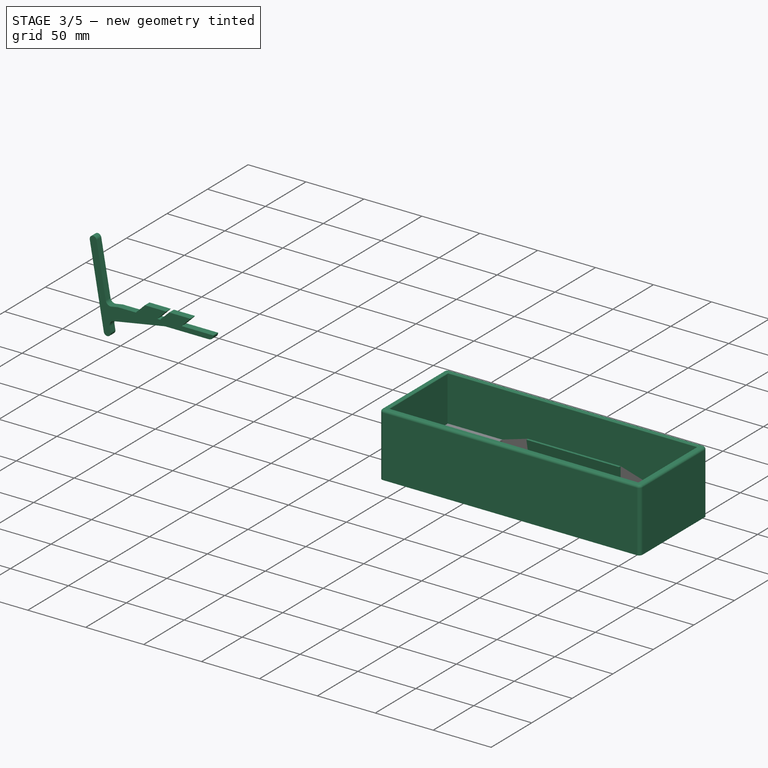
[diagram: stage 3 of 5 — iso view after this stage's code; geometry added in this stage tinted green]
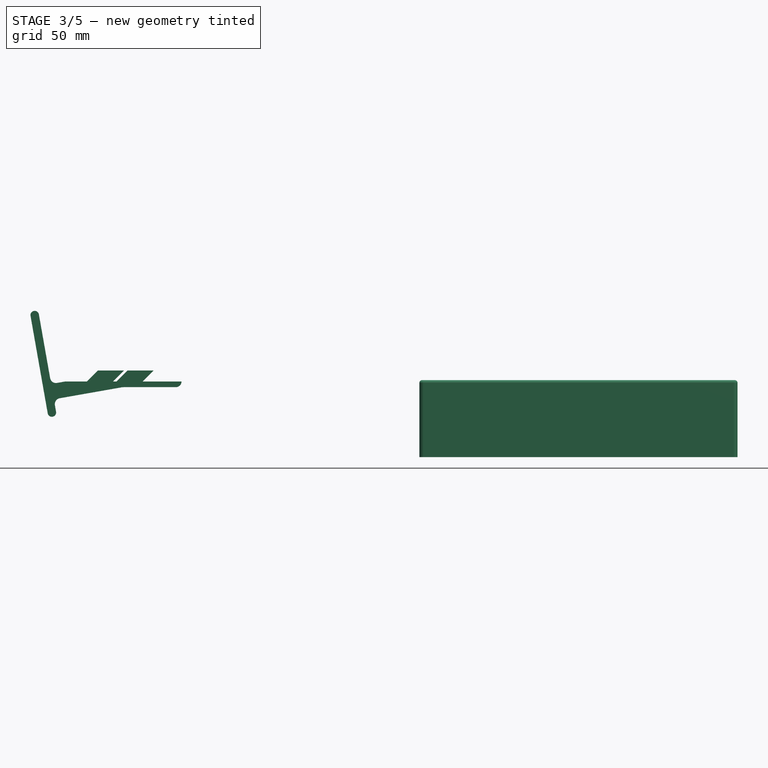
[diagram: stage 3 of 5 — front view after this stage's code; geometry added in this stage tinted green]
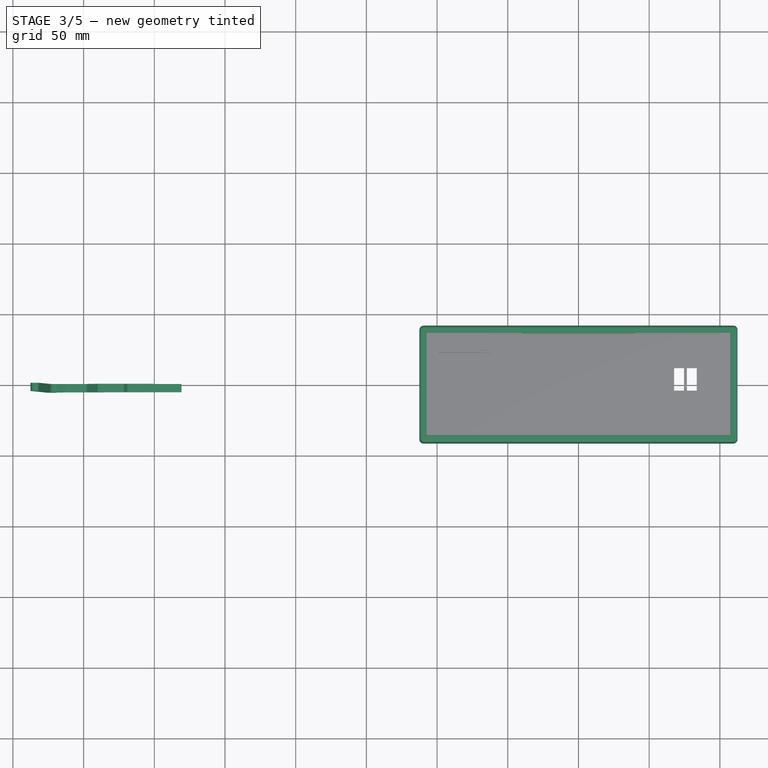
[diagram: stage 3 of 5 — top view after this stage's code; geometry added in this stage tinted green]
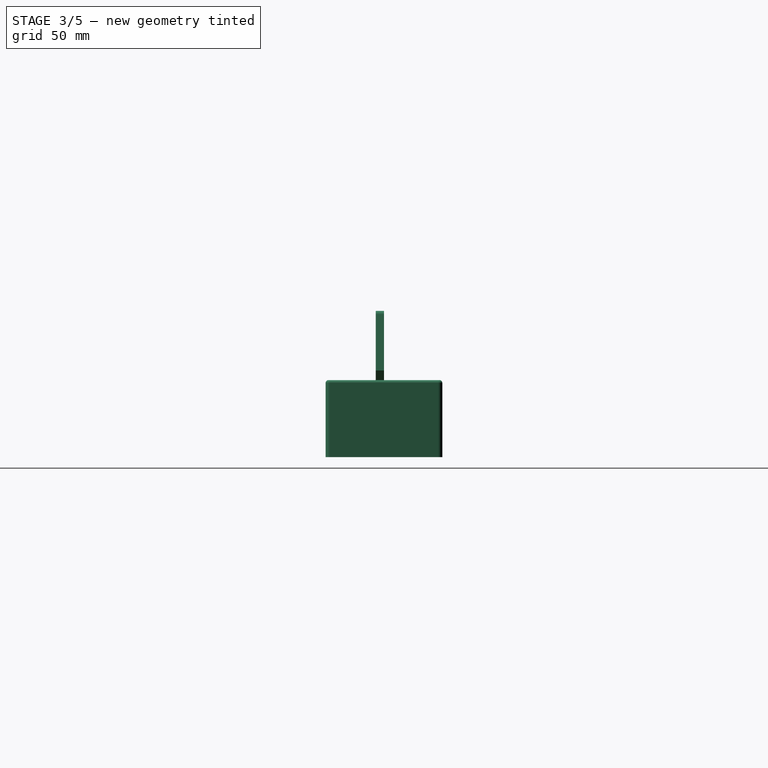
[diagram: stage 3 of 5 — right view after this stage's code; geometry added in this stage tinted green]
FEATURE [Sketcher::SketchObject] Sketch
  ArcFitTolerance = 1e-06
  AttachmentSupport = -> [XY_Plane]
  FullyConstrained = true
  MakeInternals = false
  MapMode = 5
  sketch-geometry (18):
    g0: LineSegment [constr] StartX=-109.5 StartY=-38.25 StartZ=0 EndX=109.5 EndY=-38.25 EndZ=0
    g1: LineSegment [constr] StartX=109.5 StartY=-38.25 StartZ=0 EndX=109.5 EndY=38.25 EndZ=0
    g2: LineSegment [constr] StartX=109.5 StartY=38.25 StartZ=0 EndX=-109.5 EndY=38.25 EndZ=0
    g3: LineSegment [constr] StartX=-109.5 StartY=38.25 StartZ=0 EndX=-109.5 EndY=-38.25 EndZ=0
    g4: GeomPoint [constr] X=0 Y=0 Z=0
    g5: LineSegment StartX=-112.5 StartY=38.25 StartZ=0 EndX=-112.5 EndY=-38.25 EndZ=0
    g6: ArcOfCircle CenterX=-109.5 CenterY=-38.25 CenterZ=0 NormalX=0 NormalY=0 NormalZ=-1 AngleXU=-3.14159 Radius=3 StartAngle=1.5708 EndAngle=3.14159
    g7: LineSegment StartX=-109.5 StartY=-41.25 StartZ=0 EndX=109.5 EndY=-41.25 EndZ=0
    g8: ArcOfCircle CenterX=109.5 CenterY=-38.25 CenterZ=0 NormalX=0 NormalY=0 NormalZ=-1 AngleXU=1.5708 Radius=3 StartAngle=1.5708 EndAngle=3.14159
    g9: LineSegment StartX=112.5 StartY=-38.25 StartZ=0 EndX=112.5 EndY=38.25 EndZ=0
    g10: ArcOfCircle CenterX=109.5 CenterY=38.25 CenterZ=0 NormalX=0 NormalY=0 NormalZ=-1 AngleXU=0 Radius=3 StartAngle=1.5708 EndAngle=3.14159
    g11: LineSegment StartX=109.5 StartY=41.25 StartZ=0 EndX=-109.5 EndY=41.25 EndZ=0
    g12: ArcOfCircle CenterX=-109.5 CenterY=38.25 CenterZ=0 NormalX=0 NormalY=0 NormalZ=-1 AngleXU=-1.5708 Radius=3 StartAngle=1.5708 EndAngle=3.14159
    g13: LineSegment StartX=-107.5 StartY=-36.25 StartZ=0 EndX=107.5 EndY=-36.25 EndZ=0
    g14: LineSegment StartX=107.5 StartY=-36.25 StartZ=0 EndX=107.5 EndY=36.25 EndZ=0
    g15: LineSegment StartX=107.5 StartY=36.25 StartZ=0 EndX=-107.5 EndY=36.25 EndZ=0
    g16: LineSegment StartX=-107.5 StartY=36.25 StartZ=0 EndX=-107.5 EndY=-36.25 EndZ=0
    g17: GeomPoint [constr] X=0 Y=0 Z=0
  constraints (40):
    c: Coincident(g0,g1)
    c: Coincident(g1,g2)
    c: Coincident(g2,g3)
    c: Coincident(g3,g0)
    c: Horizontal(g0)
    c: Horizontal(g2)
    c: Vertical(g1)
    c: Vertical(g3)
    c: Symmetric(g2,g0,g4)
    c: Distance(g1,g3) = 219
    c: Distance(g0,g2) = 76.5
    c: Coincident(g4,g-1)
    c: Tangent(g5,g6) = -1.5708
    c: Tangent(g5,g12) = -1.5708
    c: Tangent(g6,g7) = -1.5708
    c: Tangent(g7,g8) = -1.5708
    c: Tangent(g8,g9) = -1.5708
    c: Tangent(g9,g10) = -1.5708
    c: Tangent(g10,g11) = -1.5708
    c: Tangent(g11,g12) = -1.5708
    c: Coincident(g12,g2)
    c: Parallel(g5,g3)
    c: Coincident(g6,g0)
    c: Parallel(g7,g0)
    c: Coincident(g8,g0)
    c: Parallel(g9,g1)
    c: Coincident(g10,g1)
    c: Distance(g11,g2) = 3
    c: Coincident(g13,g14)
    c: Coincident(g14,g15)
    c: Coincident(g15,g16)
    c: Coincident(g16,g13)
    c: Horizontal(g13)
    c: Horizontal(g15)
    c: Vertical(g14)
    c: Vertical(g16)
    c: Symmetric(g15,g13,g17)
    c: Distance(g14,g16) = 215
    c: Distance(g13,g15) = 72.5
    c: Coincident(g17,g4)
FEATURE [PartDesign::Pad] Pad
  Direction = (0,0,1)
  Length = 1
  Length2 = 10
  Profile = -> Sketch
  ReferenceAxis = -> Sketch [N_Axis]
  Refine = true
  Suppressed = false
  Type = 0
FEATURE [PartDesign::Plane] DatumPlane
  AttachmentSupport = -> [Pad]
  Length = 252.249
  MapMode = 5
  Placement = pos=(0,0,0) rot=(1,0,0;3.14159rad)
  ResizeMode = 0
  Width = 109.749
FEATURE [Sketcher::SketchObject] Sketch001
  ArcFitTolerance = 1e-06
  AttachmentSupport = -> [Pad]
  ExternalGeometry = -> [Sketch]
  FullyConstrained = true
  MakeInternals = false
  MapMode = 5
  Placement = pos=(0,0,0) rot=(1,0,0;3.14159rad)
  sketch-geometry (13):
    g0: LineSegment StartX=-109.5 StartY=38.25 StartZ=0 EndX=-109.5 EndY=-38.25 EndZ=0
    g1: LineSegment StartX=-109.5 StartY=-38.25 StartZ=0 EndX=109.5 EndY=-38.25 EndZ=0
    g2: LineSegment StartX=109.5 StartY=-38.25 StartZ=0 EndX=109.5 EndY=38.25 EndZ=0
    g3: LineSegment StartX=109.5 StartY=38.25 StartZ=0 EndX=-109.5 EndY=38.25 EndZ=0
    g4: GeomPoint [constr] X=0 Y=0 Z=0
    g5: LineSegment StartX=109.5 StartY=41.25 StartZ=0 EndX=-109.5 EndY=41.25 EndZ=0
    g6: ArcOfCircle CenterX=-109.5 CenterY=38.25 CenterZ=0 NormalX=0 NormalY=0 NormalZ=-1 AngleXU=-1.5708 Radius=3 StartAngle=1.5708 EndAngle=3.14159
    g7: LineSegment StartX=-112.5 StartY=38.25 StartZ=0 EndX=-112.5 EndY=-38.25 EndZ=0
    g8: ArcOfCircle CenterX=-109.5 CenterY=-38.25 CenterZ=0 NormalX=0 NormalY=0 NormalZ=-1 AngleXU=-3.14159 Radius=3 StartAngle=1.5708 EndAngle=3.14159
    g9: LineSegment StartX=-109.5 StartY=-41.25 StartZ=0 EndX=109.5 EndY=-41.25 EndZ=0
    g10: ArcOfCircle CenterX=109.5 CenterY=-38.25 CenterZ=0 NormalX=0 NormalY=0 NormalZ=-1 AngleXU=1.5708 Radius=3 StartAngle=1.5708 EndAngle=3.14159
    g11: LineSegment StartX=112.5 StartY=-38.25 StartZ=0 EndX=112.5 EndY=38.25 EndZ=0
    g12: ArcOfCircle CenterX=109.5 CenterY=38.25 CenterZ=0 NormalX=0 NormalY=0 NormalZ=-1 AngleXU=0 Radius=3 StartAngle=1.5708 EndAngle=3.14159
  constraints (27):
    c: Coincident(g0,g1)
    c: Coincident(g1,g2)
    c: Coincident(g2,g3)
    c: Coincident(g3,g0)
    c: Vertical(g0)
    c: Vertical(g2)
    c: Horizontal(g1)
    c: Horizontal(g3)
    c: Symmetric(g2,g0,g4)
    c: Coincident(g4,g-1)
    c: Coincident(g1,g-13)
    c: Tangent(g5,g6) = -1.5708
    c: Tangent(g5,g12) = -1.5708
    c: Tangent(g6,g7) = -1.5708
    c: Tangent(g7,g8) = -1.5708
    c: Tangent(g8,g9) = -1.5708
    c: Tangent(g9,g10) = -1.5708
    c: Tangent(g10,g11) = -1.5708
    c: Tangent(g11,g12) = -1.5708
    c: Coincident(g12,g2)
    c: Parallel(g5,g3)
    c: Coincident(g6,g0)
    c: Parallel(g7,g0)
    c: Coincident(g8,g0)
    c: Parallel(g9,g1)
    c: Coincident(g10,g1)
    c: Distance(g11,g2) = 3
FEATURE [PartDesign::Pad] Pad001
  BaseFeature = -> Pad
  Direction = (0,0,-1)
  Length = 53.5
  Length2 = 10
  Profile = -> Sketch001
  ReferenceAxis = -> Sketch001 [N_Axis]
  Refine = true
  Suppressed = false
  Type = 0
FEATURE [PartDesign::Fillet] Fillet
  Base = -> Pad001 [Edge29,Edge28,Edge27,Edge30,Edge31,Edge32,Edge25,Edge26]
  BaseFeature = -> Pad001
  Radius = 2
  Refine = true
  SupportTransform = false
  Suppressed = false
  UseAllEdges = false
FEATURE [PartDesign::Fillet] Fillet001
  Base = -> Fillet [Edge9,Edge10,Edge11,Edge12]
  BaseFeature = -> Fillet
  Radius = 0.5
  Refine = true
  SupportTransform = false
  Suppressed = false
  UseAllEdges = false
FEATURE [PartDesign::Body] Body003  label="pcb"
  AllowCompound = false
  Group = -> [CopyDatumPlane002,Sketch004,Pad004,Sketch005,Pad005,Sketch006,Pad006]
  Origin = -> Origin003
  Placement = pos=(0,0,0) rot=(0,0,1;3.14159rad)
  Tip = -> Pad006
FEATURE [PartDesign::Plane] DatumPlane002
  AttachmentSupport = -> [Pad001]
  Length = 251.58
  MapMode = 5
  Placement = pos=(0,38.25,0) rot=(1,0,0;1.5708rad)
  ResizeMode = 0
  Width = 105.08
FEATURE [Sketcher::SketchObject] Sketch007
  ArcFitTolerance = 1e-06
  AttachmentSupport = -> [DatumPlane002]
  ExternalGeometry = -> [Pad001]
  FullyConstrained = true
  MakeInternals = false
  MapMode = 5
  Placement = pos=(0,38.25,0) rot=(1,0,0;1.5708rad)
  sketch-geometry (8):
    g0: LineSegment [constr] StartX=0 StartY=0 StartZ=0 EndX=0 EndY=-33 EndZ=0
    g1: LineSegment [constr] StartX=0 StartY=-33 StartZ=0 EndX=20 EndY=-33 EndZ=0
    g2: LineSegment [constr] StartX=20 StartY=-33 StartZ=0 EndX=20 EndY=0 EndZ=0
    g3: LineSegment [constr] StartX=20 StartY=0 StartZ=0 EndX=0 EndY=0 EndZ=0
    g4: LineSegment StartX=20 StartY=-33 StartZ=0 EndX=-20 EndY=-33 EndZ=0
    g5: LineSegment StartX=-20 StartY=-33 StartZ=0 EndX=-20 EndY=-43 EndZ=0
    g6: LineSegment StartX=-20 StartY=-43 StartZ=0 EndX=20 EndY=-43 EndZ=0
    g7: LineSegment StartX=20 StartY=-43 StartZ=0 EndX=20 EndY=-33 EndZ=0
  constraints (22):
    c: Coincident(g0,g1)
    c: Coincident(g1,g2)
    c: Coincident(g2,g3)
    c: Coincident(g3,g0)
    c: Vertical(g0)
    c: Vertical(g2)
    c: Horizontal(g1)
    c: Horizontal(g3)
    c: Distance(g0,g2) = 20
    c: Distance(g1,g3) = 33
    c: Coincident(g0,g-1)
    c: Coincident(g4,g5)
    c: Coincident(g5,g6)
    c: Coincident(g6,g7)
    c: Coincident(g7,g4)
    c: Horizontal(g4)
    c: Horizontal(g6)
    c: Vertical(g5)
    c: Vertical(g7)
    c: Distance(g5,g7) = 40
    c: Distance(g4,g6) = 10
    c: Coincident(g4,g1)
FEATURE [PartDesign::Plane] DatumPlane003
  AttachmentSupport = -> [Sketch007]
  Length = 94.595
  MapMode = 4
  Placement = pos=(0,38.25,0) rot=(0.707107,0,0.707107;3.14159rad)
  ResizeMode = 0
  Width = 98.595
FEATURE [Sketcher::SketchObject] Sketch008
  ArcFitTolerance = 1e-06
  AttachmentSupport = -> [DatumPlane003]
  ExternalGeometry = -> [Sketch007,Fillet001]
  FullyConstrained = true
  MakeInternals = false
  MapMode = 5
  Placement = pos=(0,38.25,0) rot=(0.707107,0,0.707107;3.14159rad)
  sketch-geometry (4):
    g0: LineSegment StartX=-43 StartY=0 StartZ=0 EndX=-33 EndY=0 EndZ=0
    g1: LineSegment StartX=-33 StartY=0 StartZ=0 EndX=-33 EndY=2 EndZ=0
    g2: LineSegment StartX=-33 StartY=2 StartZ=0 EndX=-43 EndY=0 EndZ=0
    g3: LineSegment [constr] StartX=-43 StartY=0 StartZ=0 EndX=-43 EndY=2 EndZ=0
  constraints (10):
    c: Coincident(g0,g-3)
    c: Coincident(g0,g-4)
    c: Distance(g1) = 2
    c: Coincident(g1,g0)
    c: Vertical(g1)
    c: Coincident(g2,g1)
    c: Coincident(g2,g0)
    c: Vertical(g3)
    c: Distance(g3,g3) = 2
    c: Coincident(g3,g2)
FEATURE [PartDesign::Pad] Pad007
  BaseFeature = -> Fillet001
  Direction = (1,0,-2e-16)
  Length = 80
  Length2 = 10
  Midplane = true
  Profile = -> Sketch008
  ReferenceAxis = -> Sketch008 [N_Axis]
  Refine = true
  Suppressed = false
  Type = 0
FEATURE [Sketcher::SketchObject] Sketch047
  ArcFitTolerance = 1e-06
  AttachmentSupport = -> [XZ_Plane006]
  FullyConstrained = true
  MakeInternals = false
  MapMode = 5
  Placement = pos=(0,0,0) rot=(1,0,0;1.5708rad)
  sketch-geometry (73):
    g0: LineSegment [constr] StartX=0 StartY=0 StartZ=0 EndX=-300 EndY=0 EndZ=0
    g1: LineSegment [constr] StartX=-300 StartY=0 StartZ=0 EndX=-300 EndY=8 EndZ=0
    g2: LineSegment [constr] StartX=-300 StartY=8 StartZ=0 EndX=-308 EndY=8 EndZ=0
    g3: LineSegment [constr] StartX=-308 StartY=8 StartZ=0 EndX=-308 EndY=0 EndZ=0
    g4: LineSegment [constr] StartX=-308 StartY=0 StartZ=0 EndX=-300 EndY=0 EndZ=0
    g5: LineSegment [constr] StartX=-308 StartY=0 StartZ=0 EndX=-300 EndY=8 EndZ=0
    g6: LineSegment [constr] StartX=-308 StartY=0 StartZ=0 EndX=-327 EndY=0 EndZ=0
    g7: LineSegment [constr] StartX=-327 StartY=0 StartZ=0 EndX=-319 EndY=0 EndZ=0
    g8: LineSegment [constr] StartX=-319 StartY=0 StartZ=0 EndX=-319 EndY=8 EndZ=0
    g9: LineSegment [constr] StartX=-319 StartY=8 StartZ=0 EndX=-327 EndY=8 EndZ=0
    g10: LineSegment [constr] StartX=-327 StartY=8 StartZ=0 EndX=-327 EndY=0 EndZ=0
    g11: LineSegment [constr] StartX=-327 StartY=0 StartZ=0 EndX=-319 EndY=8 EndZ=0
    g12: LineSegment [constr] StartX=-319 StartY=8 StartZ=0 EndX=-300 EndY=8 EndZ=0
    g13: LineSegment [constr] StartX=-327 StartY=0 StartZ=0 EndX=-329 EndY=0 EndZ=0
    g14: LineSegment [constr] StartX=-329 StartY=0 StartZ=0 EndX=-321 EndY=0 EndZ=0
    g15: LineSegment [constr] StartX=-321 StartY=0 StartZ=0 EndX=-321 EndY=8 EndZ=0
    g16: LineSegment [constr] StartX=-321 StartY=8 StartZ=0 EndX=-329 EndY=8 EndZ=0
    g17: LineSegment [constr] StartX=-329 StartY=8 StartZ=0 EndX=-329 EndY=0 EndZ=0
    g18: LineSegment [constr] StartX=-329 StartY=0 StartZ=0 EndX=-321 EndY=8 EndZ=0
    g19: LineSegment [constr] StartX=-329 StartY=0 StartZ=0 EndX=-348 EndY=0 EndZ=0
    g20: LineSegment [constr] StartX=-348 StartY=0 StartZ=0 EndX=-340 EndY=0 EndZ=0
    g21: LineSegment [constr] StartX=-340 StartY=0 StartZ=0 EndX=-340 EndY=8 EndZ=0
    g22: LineSegment [constr] StartX=-340 StartY=8 StartZ=0 EndX=-348 EndY=8 EndZ=0
    g23: LineSegment [constr] StartX=-348 StartY=8 StartZ=0 EndX=-348 EndY=0 EndZ=0
    g24: LineSegment [constr] StartX=-348 StartY=0 StartZ=0 EndX=-340 EndY=8 EndZ=0
    g25: LineSegment [constr] StartX=-340 StartY=8 StartZ=0 EndX=-321 EndY=8 EndZ=0
    g26: LineSegment [constr] StartX=-348 StartY=0 StartZ=0 EndX=-347.75 EndY=0 EndZ=0
    g27: LineSegment [constr] StartX=-329 StartY=0 StartZ=0 EndX=-329.25 EndY=0 EndZ=0
    g28: LineSegment [constr] StartX=-347.75 StartY=0 StartZ=0 EndX=-339.75 EndY=8 EndZ=0
    g29: LineSegment [constr] StartX=-329.25 StartY=0 StartZ=0 EndX=-321.25 EndY=8 EndZ=0
    g30: GeomPoint X=-340 Y=7.75 Z=0
    g31: LineSegment StartX=-340 StartY=7.75 StartZ=0 EndX=-321.5 EndY=7.75 EndZ=0
    g32: LineSegment [constr] StartX=-327 StartY=0 StartZ=0 EndX=-326.75 EndY=0 EndZ=0
    g33: LineSegment [constr] StartX=-308 StartY=0 StartZ=0 EndX=-308.25 EndY=0 EndZ=0
    g34: LineSegment [constr] StartX=-326.75 StartY=0 StartZ=0 EndX=-318.75 EndY=8 EndZ=0
    g35: LineSegment [constr] StartX=-308.25 StartY=0 StartZ=0 EndX=-300.25 EndY=8 EndZ=0
    g36: GeomPoint X=-319 Y=7.75 Z=0
    g37: LineSegment StartX=-319 StartY=7.75 StartZ=0 EndX=-300.5 EndY=7.75 EndZ=0
    g38: LineSegment StartX=-308.25 StartY=0 StartZ=0 EndX=-280.75 EndY=0 EndZ=0
    g39: LineSegment [constr] StartX=-280.75 StartY=0 StartZ=0 EndX=-284.75 EndY=0 EndZ=0
    g40: LineSegment [constr] StartX=-280.75 StartY=0 StartZ=0 EndX=-280.6 EndY=0 EndZ=0
    g41: LineSegment [constr] StartX=-363 StartY=0 StartZ=0 EndX=-363.1 EndY=0 EndZ=0
    g42: LineSegment [constr] StartX=-280.6 StartY=0 StartZ=0 EndX=-280.6 EndY=54.5 EndZ=0
    g43: LineSegment [constr] StartX=-363.1 StartY=0 StartZ=0 EndX=-363.1 EndY=54.5 EndZ=0
    g44: LineSegment [constr] StartX=-363.1 StartY=54.5 StartZ=0 EndX=-280.6 EndY=54.5 EndZ=0
    g45: LineSegment StartX=-363.1 StartY=0 StartZ=0 EndX=-368.77 EndY=-0.999753 EndZ=0
    g46: LineSegment StartX=-373.685 StartY=2.44171 StartZ=0 EndX=-381.63 EndY=47.5039 EndZ=0
    g47: LineSegment [constr] StartX=-381.63 StartY=47.5039 StartZ=0 EndX=-387.539 EndY=46.462 EndZ=0
    g48: GeomPoint X=-384.585 Y=46.983 Z=0
    g49: LineSegment StartX=-387.539 StartY=46.462 StartZ=0 EndX=-375.384 EndY=-22.4745 EndZ=0
    g50: LineSegment [constr] StartX=-375.384 StartY=-22.4745 StartZ=0 EndX=-369.475 EndY=-21.4326 EndZ=0
    g51: GeomPoint [constr] X=-372.429 Y=-21.9536 Z=0
    g52: LineSegment StartX=-366.86 StartY=-11.8326 StartZ=0 EndX=-323.297 EndY=-4.15134 EndZ=0
    g53: LineSegment StartX=-308.25 StartY=0 StartZ=0 EndX=-300.5 EndY=7.75 EndZ=0
    g54: LineSegment StartX=-321.5 StartY=7.75 StartZ=0 EndX=-329.25 EndY=-9e-16 EndZ=0
    g55: LineSegment StartX=-326.75 StartY=0 StartZ=0 EndX=-319 EndY=7.75 EndZ=0
    g56: LineSegment StartX=-340 StartY=7.75 StartZ=0 EndX=-347.75 EndY=0 EndZ=0
    g57: ArcOfCircle CenterX=-372.429 CenterY=-21.9536 CenterZ=0 NormalX=0 NormalY=0 NormalZ=1 AngleXU=0 Radius=3 StartAngle=3.31613 EndAngle=6.45772
    g58: ArcOfCircle CenterX=-384.585 CenterY=46.983 CenterZ=0 NormalX=0 NormalY=0 NormalZ=1 AngleXU=0 Radius=3 StartAngle=0.174533 EndAngle=3.31613
    g59: LineSegment StartX=-329.25 StartY=0 StartZ=0 EndX=-326.75 EndY=0 EndZ=0
    g60: LineSegment StartX=-363.1 StartY=0 StartZ=0 EndX=-348 EndY=0 EndZ=0
    g61: LineSegment StartX=-370.301 StartY=-16.7475 StartZ=0 EndX=-369.475 EndY=-21.4326 EndZ=0
    g62: LineSegment StartX=-348 StartY=0 StartZ=0 EndX=-347.75 EndY=0 EndZ=0
    g63: ArcOfCircle CenterX=-369.507 CenterY=3.17843 CenterZ=0 NormalX=0 NormalY=0 NormalZ=1 AngleXU=0 Radius=4.24264 StartAngle=3.31613 EndAngle=4.88692
    g64: GeomPoint [constr] X=-372.948 Y=-1.73648 Z=0
    g65: ArcOfCircle CenterX=-366.123 CenterY=-16.0108 CenterZ=0 NormalX=0 NormalY=0 NormalZ=1 AngleXU=0 Radius=4.24264 StartAngle=1.74533 EndAngle=3.31613
    g66: GeomPoint [constr] X=-371.038 Y=-12.5694 Z=0
    g67: LineSegment StartX=-280.75 StartY=0 StartZ=0 EndX=-280.75 EndY=-0.000604046 EndZ=0
    g68: LineSegment StartX=-284.749 StartY=-4 StartZ=0 EndX=-321.567 EndY=-4 EndZ=0
    g69: ArcOfCircle CenterX=-284.749 CenterY=-0.000604046 CenterZ=0 NormalX=0 NormalY=0 NormalZ=1 AngleXU=0 Radius=3.9994 StartAngle=4.71239 EndAngle=6.28319
    g70: GeomPoint [constr] X=-280.75 Y=-4 Z=0
    g71: ArcOfCircle CenterX=-321.567 CenterY=-13.9619 CenterZ=0 NormalX=0 NormalY=0 NormalZ=1 AngleXU=0 Radius=9.96195 StartAngle=1.5708 EndAngle=1.74533
    g72: GeomPoint [constr] X=-322.439 Y=-4 Z=0
  constraints (187):
    c: Distance(g0) = 300
    c: Coincident(g0,g-1)
    c: Horizontal(g0)
    c: Coincident(g1,g2)
    c: Coincident(g2,g3)
    c: Coincident(g3,g4)
    c: Coincident(g4,g1)
    c: Vertical(g1)
    c: Vertical(g3)
    c: Horizontal(g2)
    c: Horizontal(g4)
    c: Distance(g1,g3) = 8
    c: Distance(g2,g4) = 8
    c: Coincident(g1,g0)
    c: Coincident(g5,g3)
    c: Coincident(g5,g1)
    c: Distance(g6) = 19
    c: Coincident(g6,g3)
    c: PointOnObject(g6,g-1)
    c: Coincident(g7,g8)
    c: Coincident(g8,g9)
    c: Coincident(g9,g10)
    c: Coincident(g10,g7)
    c: Horizontal(g7)
    c: Horizontal(g9)
    c: Vertical(g8)
    c: Vertical(g10)
    c: Distance(g8,g10) = 8
    c: Distance(g7,g9) = 8
    c: Coincident(g7,g6)
    c: Coincident(g11,g6)
    c: Coincident(g11,g8)
    c: Coincident(g12,g8)
    c: Coincident(g12,g1)
    c: Distance(g13) = 2
    c: Coincident(g13,g6)
    c: PointOnObject(g13,g-1)
    c: Coincident(g14,g15)
    c: Coincident(g15,g16)
    c: Coincident(g16,g17)
    c: Coincident(g17,g14)
    c: Horizontal(g14)
    c: Horizontal(g16)
    c: Vertical(g15)
    c: Vertical(g17)
    c: Distance(g15,g17) = 8
    c: Coincident(g14,g13)
    c: PointOnObject(g15,g9)
    c: Coincident(g18,g13)
    c: Coincident(g18,g15)
    c: Distance(g19) = 19
    c: Coincident(g19,g13)
    c: PointOnObject(g19,g-1)
    c: Coincident(g20,g21)
    c: Coincident(g21,g22)
    c: Coincident(g22,g23)
    c: Coincident(g23,g20)
    c: Horizontal(g20)
    c: Horizontal(g22)
    c: Vertical(g21)
    c: Vertical(g23)
    c: Distance(g21,g23) = 8
    c: Distance(g20,g22) = 8
    c: Coincident(g20,g19)
    c: Coincident(g24,g19)
    c: Coincident(g24,g21)
    c: Coincident(g25,g21)
    c: Coincident(g25,g15)
    c: Distance(g26) = 0.25
    c: Coincident(g26,g19)
    c: PointOnObject(g26,g19)
    c: Distance(g27) = 0.25
    c: Coincident(g27,g13)
    c: PointOnObject(g27,g19)
    c: Coincident(g28,g26)
    c: PointOnObject(g28,g25)
    c: Parallel(g28,g24)
    c: Coincident(g29,g27)
    c: PointOnObject(g29,g9)
    c: Parallel(g29,g18)
    c: PointOnObject(g30,g21)
    c: PointOnObject(g30,g28)
    c: Coincident(g31,g30)
    c: PointOnObject(g31,g29)
    c: Parallel(g31,g25)
    c: Distance(g32) = 0.25
    c: Coincident(g32,g6)
    c: PointOnObject(g32,g6)
    c: Distance(g33) = 0.25
    c: Coincident(g33,g3)
    c: PointOnObject(g33,g6)
    c: Coincident(g34,g32)
    c: PointOnObject(g34,g12)
    c: Parallel(g34,g11)
    c: Coincident(g35,g33)
    c: PointOnObject(g35,g2)
    c: Parallel(g35,g5)
    c: PointOnObject(g36,g8)
    c: PointOnObject(g36,g34)
    c: Coincident(g37,g36)
    c: PointOnObject(g37,g35)
    c: Horizontal(g37)
    c: PointOnObject(g41,g-1)
    c: Distance(g38) = 27.5
    c: Coincident(g38,g33)
    c: PointOnObject(g38,g0)
    c: Horizontal(g39)
    c: Distance(g39,g39) = 4
    c: Coincident(g39,g38)
    c: Distance(g40) = 0.15
    c: Coincident(g40,g38)
    c: PointOnObject(g40,g0)
    c: Distance(g41) = 0.1
    c: PointOnObject(g41,g-1)
    c: Distance(g42) = 54.5
    c: Coincident(g42,g40)
    c: Vertical(g42)
    c: Distance(g43) = 54.5
    c: Coincident(g43,g41)
    c: Vertical(g43)
    c: Coincident(g44,g43)
    c: Coincident(g44,g42)
    c: Distance(g45,g64) = 10
    c: Angle(g-1,g45) = -2.96706
    c: Coincident(g45,g41)
    c: Distance(g46,g64) = 50
    c: Angle(g-1,g46) = 1.74533
    c: Distance(g47) = 6
    c: Angle(g-1,g47) = -2.96706
    c: Coincident(g47,g46)
    c: Symmetric(g47,g47,g48)
    c: Distance(g49) = 70
    c: Angle(g-1,g49) = -1.39626
    c: Coincident(g49,g47)
    c: Distance(g50) = 6
    c: Angle(g-1,g50) = 0.174533
    c: Coincident(g50,g49)
    c: Symmetric(g50,g50,g51)
    c: Coincident(g53,g33)
    c: Coincident(g53,g37)
    c: Coincident(g54,g31)
    c: Coincident(g54,g27)
    c: Coincident(g55,g32)
    c: Coincident(g55,g36)
    c: Coincident(g56,g30)
    c: Coincident(g56,g26)
    c: Coincident(g57,g51)
    c: Coincident(g57,g50)
    c: PointOnObject(g57,g50)
    c: Coincident(g58,g48)
    c: Coincident(g58,g46)
    c: PointOnObject(g58,g47)
    c: Coincident(g59,g27)
    c: Coincident(g59,g32)
    c: Coincident(g60,g41)
    c: Coincident(g60,g19)
    c: Coincident(g61,g50)
    c: DistanceX(g44,g44) = 82.5
    c: Parallel(g52,g45)
    c: Distance(g66,g61) = 9
    c: Parallel(g61,g49)
    c: Coincident(g62,g19)
    c: Coincident(g62,g26)
    c: PointOnObject(g64,g45)
    c: PointOnObject(g64,g46)
    c: Tangent(g45,g63) = 1.5708
    c: Tangent(g46,g63) = 1.5708
    c: PointOnObject(g66,g52)
    c: PointOnObject(g66,g61)
    c: Tangent(g52,g65) = 1.5708
    c: Tangent(g61,g65) = -1.5708
    c: Distance(g63,g64) = 6
    c: Distance(g65,g66) = 6
    c: Distance(g67,g70) = 4
    c: Coincident(g67,g38)
    c: Vertical(g67)
    c: Horizontal(g68)
    c: PointOnObject(g70,g67)
    c: PointOnObject(g70,g68)
    c: Tangent(g67,g69) = 1.5708
    c: Tangent(g68,g69) = 1.5708
    c: Distance(g69,g70) = 5.656
    c: PointOnObject(g72,g52)
    c: PointOnObject(g72,g68)
    c: Tangent(g52,g71) = 1.5708
    c: Tangent(g68,g71) = -1.5708
    c: Distance(g72,g71) = 10
FEATURE [PartDesign::Pad] Pad020
  Direction = (0,-1,2e-16)
  Length = 5.8
  Length2 = 10
  Placement = pos=(0,0,0) rot=(1,0,0;1.5708rad)
  Profile = -> Sketch047
  ReferenceAxis = -> Sketch047 [N_Axis]
  Refine = true
  Suppressed = false
  Type = 0
FEATURE [PartDesign::Plane] DatumPlane030
  AttachmentSupport = -> [Chamfer]
  Length = 246.389
  MapMode = 5
  Placement = pos=(0,38.05,-53.5) rot=(0,0.707107,0.707107;3.14159rad)
  ResizeMode = 0
  Width = 104.789
FEATURE [Sketcher::SketchObject] Sketch049
  ArcFitTolerance = 1e-06
  AttachmentSupport = -> [DatumPlane030]
  ExternalGeometry = -> [Chamfer]
  FullyConstrained = true
  MakeInternals = false
  MapMode = 5
  Placement = pos=(0,38.05,-53.5) rot=(0,0.707107,0.707107;3.14159rad)
  sketch-geometry (13):
    g0: LineSegment [constr] StartX=-109.05 StartY=0 StartZ=0 EndX=-89.05 EndY=0 EndZ=0
    g1: LineSegment [constr] StartX=-89.05 StartY=0 StartZ=0 EndX=-89.05 EndY=2.1 EndZ=0
    g2: LineSegment [constr] StartX=-89.05 StartY=2.1 StartZ=0 EndX=-109.05 EndY=2.1 EndZ=0
    g3: LineSegment [constr] StartX=-109.05 StartY=2.1 StartZ=0 EndX=-109.05 EndY=0 EndZ=0
    g4: LineSegment [constr] StartX=109.05 StartY=0 StartZ=0 EndX=109.05 EndY=2.1 EndZ=0
    g5: LineSegment [constr] StartX=109.05 StartY=2.1 StartZ=0 EndX=89.05 EndY=2.1 EndZ=0
    g6: LineSegment [constr] StartX=89.05 StartY=2.1 StartZ=0 EndX=89.05 EndY=0 EndZ=0
    g7: LineSegment [constr] StartX=89.05 StartY=0 StartZ=0 EndX=109.05 EndY=0 EndZ=0
    g8: LineSegment [constr] StartX=89.05 StartY=2.1 StartZ=0 EndX=89.05 EndY=4.9 EndZ=0
    g9: LineSegment StartX=89.05 StartY=4.9 StartZ=0 EndX=-89.05 EndY=4.9 EndZ=0
    g10: LineSegment StartX=-89.05 StartY=4.9 StartZ=0 EndX=-89.05 EndY=2.1 EndZ=0
    g11: LineSegment StartX=-89.05 StartY=2.1 StartZ=0 EndX=89.05 EndY=2.1 EndZ=0
    g12: LineSegment StartX=89.05 StartY=2.1 StartZ=0 EndX=89.05 EndY=4.9 EndZ=0
  constraints (35):
    c: Coincident(g0,g1)
    c: Coincident(g1,g2)
    c: Coincident(g2,g3)
    c: Coincident(g3,g0)
    c: Horizontal(g0)
    c: Horizontal(g2)
    c: Vertical(g1)
    c: Vertical(g3)
    c: Distance(g1,g3) = 20
    c: Distance(g0,g2) = 2.1
    c: Coincident(g0,g-4)
    c: Coincident(g4,g5)
    c: Coincident(g5,g6)
    c: Coincident(g6,g7)
    c: Coincident(g7,g4)
    c: Vertical(g4)
    c: Vertical(g6)
    c: Horizontal(g5)
    c: Horizontal(g7)
    c: Distance(g4,g6) = 20
    c: Distance(g5,g7) = 2.1
    c: Coincident(g4,g-3)
    c: Distance(g8) = 2.8
    c: Coincident(g8,g5)
    c: Vertical(g8)
    c: Coincident(g9,g10)
    c: Coincident(g10,g11)
    c: Coincident(g11,g12)
    c: Coincident(g12,g9)
    c: Horizontal(g9)
    c: Horizontal(g11)
    c: Vertical(g10)
    c: Vertical(g12)
    c: Coincident(g9,g8)
    c: Coincident(g10,g1)
FEATURE [PartDesign::Pad] Pad022
  BaseFeature = -> Chamfer
  Direction = (0,1,-2e-16)
  Length = 1.4
  Length2 = 10
  Placement = pos=(0,0,-53.5) rot=(0,0,1;0rad)
  Profile = -> Sketch049
  ReferenceAxis = -> Sketch049 [N_Axis]
  Refine = true
  Suppressed = false
  Type = 0
FEATURE [PartDesign::Chamfer] Chamfer001
  Angle = 45
  Base = -> Pad022 [Edge195]
  BaseFeature = -> Pad022
  ChamferType = 0
  FlipDirection = false
  Placement = pos=(0,0,-53.5) rot=(0,0,1;0rad)
  Refine = true
  Size = 1
  Size2 = 1
  SupportTransform = false
  Suppressed = false
  UseAllEdges = false
FEATURE [PartDesign::Body] Body004  label="rear_panel"
  AllowCompound = false
  Group = -> [DatumPlane010,CopyPad010,Sketch015,Pad011,Pocket008,Sketch016,Pad012,Sketch026,DatumPlane012,Sketch030,Pad015,DatumPlane013,Sketch031,Pocket,DatumPlane014,Sketch032,Pocket009,DatumPlane020,Sketch038,DatumPlane021,Sketch039,Pocket014,DatumPlane022,Sketch040,Pocket015,DatumPlane023,Sketch041,Pad017,DatumPlane024,Sketch042,Pad018,DatumPlane027,Sketch045,Pad019,DatumPlane028,Sketch046,Pocket018,+8 more]
  Origin = -> Origin004
  Tip = -> Chamfer001
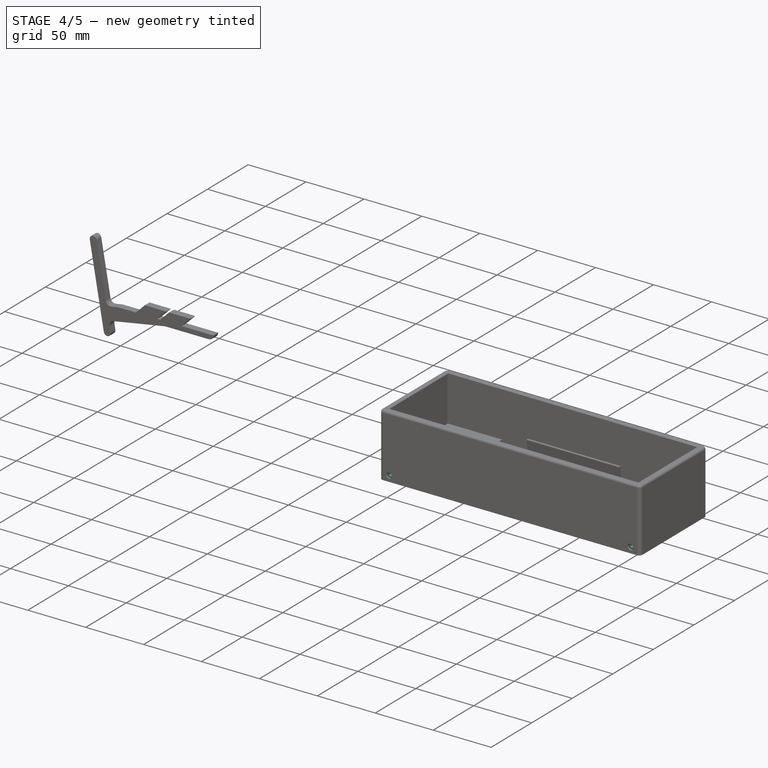
[diagram: stage 4 of 5 — iso view after this stage's code; geometry added in this stage tinted green]
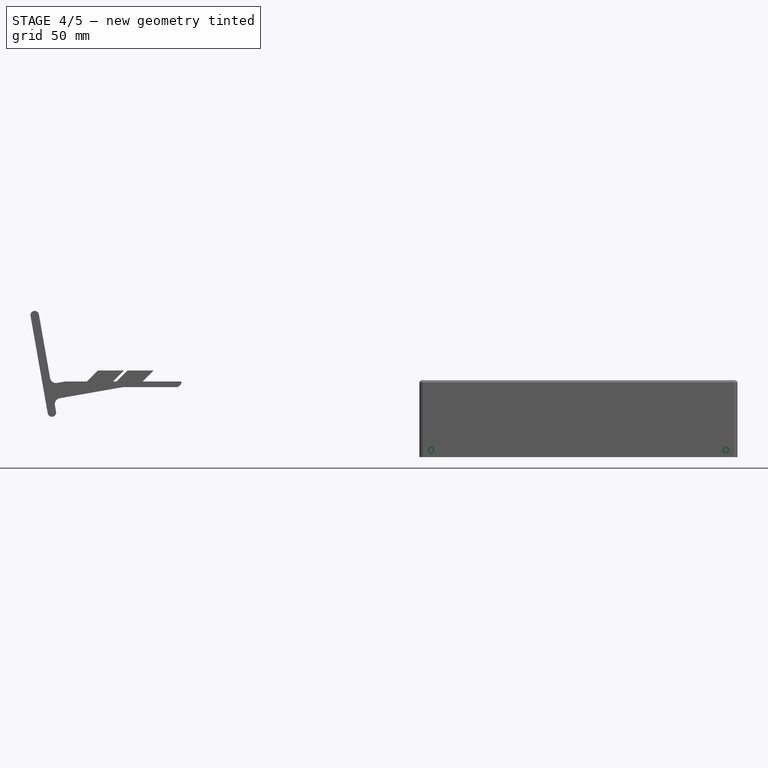
[diagram: stage 4 of 5 — front view after this stage's code; geometry added in this stage tinted green]
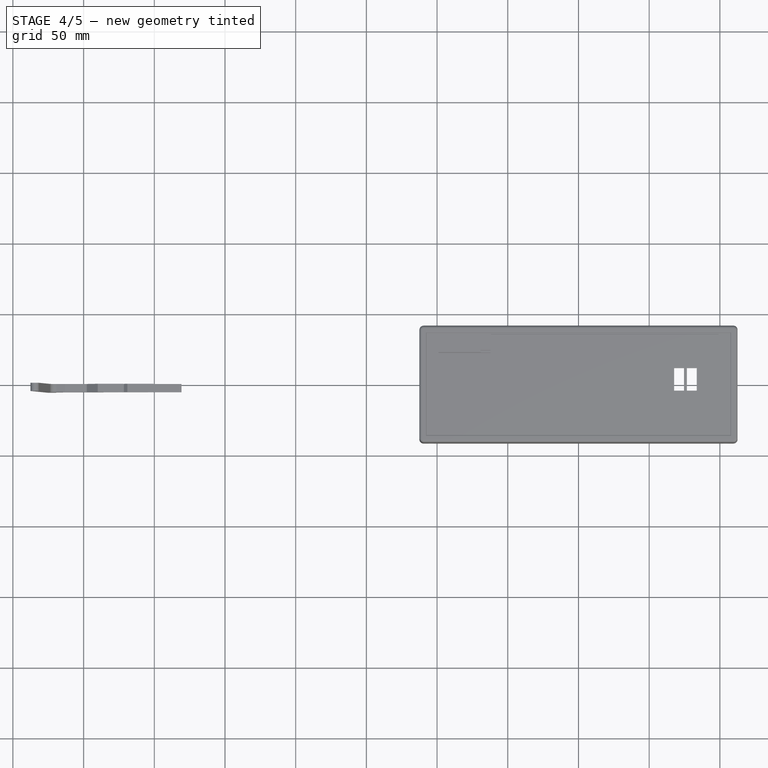
[diagram: stage 4 of 5 — top view after this stage's code; geometry added in this stage tinted green]
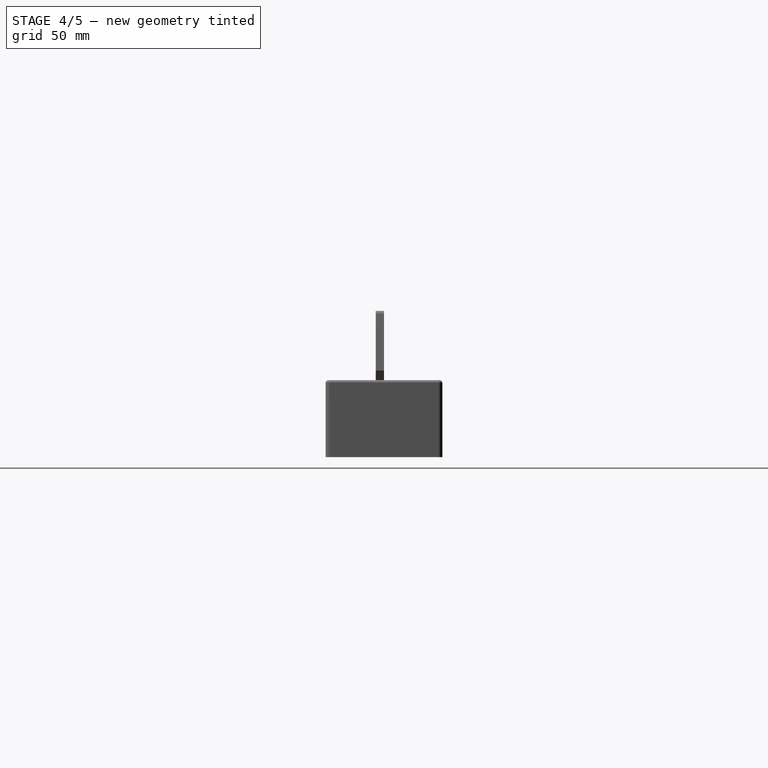
[diagram: stage 4 of 5 — right view after this stage's code; geometry added in this stage tinted green]
FEATURE [PartDesign::Plane] DatumPlane004
  AttachmentSupport = -> [Pad007]
  Length = 251.58
  MapMode = 5
  Placement = pos=(0,-38.25,0) rot=(0,0.707107,0.707107;3.14159rad)
  ResizeMode = 0
  Width = 105.08
FEATURE [Sketcher::SketchObject] Sketch009
  ArcFitTolerance = 1e-06
  AttachmentSupport = -> [DatumPlane004]
  ExternalGeometry = -> [Pad007]
  FullyConstrained = true
  MakeInternals = false
  MapMode = 5
  Placement = pos=(0,-38.25,0) rot=(0,0.707107,0.707107;3.14159rad)
  sketch-geometry (8):
    g0: LineSegment [constr] StartX=0 StartY=0 StartZ=0 EndX=0 EndY=-33 EndZ=0
    g1: LineSegment [constr] StartX=0 StartY=-33 StartZ=0 EndX=20 EndY=-33 EndZ=0
    g2: LineSegment [constr] StartX=20 StartY=-33 StartZ=0 EndX=20 EndY=0 EndZ=0
    g3: LineSegment [constr] StartX=20 StartY=0 StartZ=0 EndX=0 EndY=0 EndZ=0
    g4: LineSegment StartX=20 StartY=-33 StartZ=0 EndX=-20 EndY=-33 EndZ=0
    g5: LineSegment StartX=-20 StartY=-33 StartZ=0 EndX=-20 EndY=-43 EndZ=0
    g6: LineSegment StartX=-20 StartY=-43 StartZ=0 EndX=20 EndY=-43 EndZ=0
    g7: LineSegment StartX=20 StartY=-43 StartZ=0 EndX=20 EndY=-33 EndZ=0
  constraints (22):
    c: Coincident(g0,g1)
    c: Coincident(g1,g2)
    c: Coincident(g2,g3)
    c: Coincident(g3,g0)
    c: Vertical(g0)
    c: Vertical(g2)
    c: Horizontal(g1)
    c: Horizontal(g3)
    c: Distance(g0,g2) = 20
    c: Distance(g1,g3) = 33
    c: Coincident(g0,g-1)
    c: Coincident(g4,g5)
    c: Coincident(g5,g6)
    c: Coincident(g6,g7)
    c: Coincident(g7,g4)
    c: Horizontal(g4)
    c: Horizontal(g6)
    c: Vertical(g5)
    c: Vertical(g7)
    c: Distance(g5,g7) = 40
    c: Distance(g4,g6) = 10
    c: Coincident(g4,g1)
FEATURE [PartDesign::Plane] DatumPlane005
  AttachmentSupport = -> [Sketch009]
  Length = 94.595
  MapMode = 4
  Placement = pos=(0,-38.25,0) rot=(0,-1,0;1.5708rad)
  ResizeMode = 0
  Width = 98.595
FEATURE [Sketcher::SketchObject] Sketch010
  ArcFitTolerance = 1e-06
  AttachmentSupport = -> [DatumPlane005]
  ExternalGeometry = -> [Sketch009]
  FullyConstrained = true
  MakeInternals = false
  MapMode = 5
  Placement = pos=(0,-38.25,0) rot=(0,-1,0;1.5708rad)
  sketch-geometry (4):
    g0: LineSegment StartX=-43 StartY=0 StartZ=0 EndX=-33 EndY=0 EndZ=0
    g1: LineSegment StartX=-33 StartY=0 StartZ=0 EndX=-33 EndY=2 EndZ=0
    g2: LineSegment StartX=-33 StartY=2 StartZ=0 EndX=-43 EndY=0 EndZ=0
    g3: LineSegment [constr] StartX=-43 StartY=0 StartZ=0 EndX=-43 EndY=2 EndZ=0
  constraints (10):
    c: Coincident(g0,g-4)
    c: Coincident(g0,g-3)
    c: Distance(g1) = 2
    c: Coincident(g1,g0)
    c: Vertical(g1)
    c: Coincident(g2,g1)
    c: Coincident(g2,g0)
    c: Vertical(g3)
    c: Distance(g3,g3) = 2
    c: Coincident(g3,g2)
FEATURE [PartDesign::Pad] Pad008
  BaseFeature = -> Pad007
  Direction = (-1,0,2e-16)
  Length = 80
  Length2 = 10
  Midplane = true
  Profile = -> Sketch010
  ReferenceAxis = -> Sketch010 [N_Axis]
  Refine = true
  Suppressed = false
  Type = 0
FEATURE [PartDesign::Plane] DatumPlane006
  AttachmentSupport = -> [Pad008]
  Length = 98.595
  MapMode = 5
  Placement = pos=(-109.5,0,0) rot=(0.57735,0.57735,0.57735;2.0944rad)
  ResizeMode = 0
  Width = 94.595
FEATURE [Sketcher::SketchObject] Sketch011
  ArcFitTolerance = 1e-06
  AttachmentSupport = -> [DatumPlane006]
  ExternalGeometry = -> [Pad008]
  FullyConstrained = true
  MakeInternals = false
  MapMode = 5
  Placement = pos=(-109.5,0,0) rot=(0.57735,0.57735,0.57735;2.0944rad)
  sketch-geometry (8):
    g0: LineSegment [constr] StartX=0 StartY=0 StartZ=0 EndX=0 EndY=-33 EndZ=0
    g1: LineSegment [constr] StartX=0 StartY=-33 StartZ=0 EndX=5 EndY=-33 EndZ=0
    g2: LineSegment [constr] StartX=5 StartY=-33 StartZ=0 EndX=5 EndY=0 EndZ=0
    g3: LineSegment [constr] StartX=5 StartY=0 StartZ=0 EndX=0 EndY=0 EndZ=0
    g4: LineSegment StartX=5 StartY=-33 StartZ=0 EndX=-5 EndY=-33 EndZ=0
    g5: LineSegment StartX=-5 StartY=-33 StartZ=0 EndX=-5 EndY=-43 EndZ=0
    g6: LineSegment StartX=-5 StartY=-43 StartZ=0 EndX=5 EndY=-43 EndZ=0
    g7: LineSegment StartX=5 StartY=-43 StartZ=0 EndX=5 EndY=-33 EndZ=0
  constraints (22):
    c: Coincident(g0,g1)
    c: Coincident(g1,g2)
    c: Coincident(g2,g3)
    c: Coincident(g3,g0)
    c: Vertical(g0)
    c: Vertical(g2)
    c: Horizontal(g1)
    c: Horizontal(g3)
    c: Distance(g0,g2) = 5
    c: Distance(g1,g3) = 33
    c: Coincident(g0,g-1)
    c: Coincident(g4,g5)
    c: Coincident(g5,g6)
    c: Coincident(g6,g7)
    c: Coincident(g7,g4)
    c: Horizontal(g4)
    c: Horizontal(g6)
    c: Vertical(g5)
    c: Vertical(g7)
    c: Distance(g5,g7) = 10
    c: Distance(g4,g6) = 10
    c: Coincident(g4,g1)
FEATURE [PartDesign::Plane] DatumPlane007
  AttachmentSupport = -> [Sketch011]
  Length = 105.08
  MapMode = 4
  Placement = pos=(-109.5,0,0) rot=(0.57735,0.57735,0.57735;4.18879rad)
  ResizeMode = 0
  Width = 251.58
FEATURE [Sketcher::SketchObject] Sketch012
  ArcFitTolerance = 1e-06
  AttachmentSupport = -> [DatumPlane007]
  ExternalGeometry = -> [Sketch011,Pad008]
  FullyConstrained = true
  MakeInternals = false
  MapMode = 5
  Placement = pos=(-109.5,0,0) rot=(0.57735,0.57735,0.57735;4.18879rad)
  sketch-geometry (4):
    g0: LineSegment [constr] StartX=-33 StartY=0 StartZ=0 EndX=0 EndY=0 EndZ=0
    g1: LineSegment StartX=-43 StartY=3e-16 StartZ=0 EndX=-33 EndY=0 EndZ=0
    g2: LineSegment StartX=-33 StartY=0 StartZ=0 EndX=-33 EndY=0.8 EndZ=0
    g3: LineSegment StartX=-33 StartY=0.8 StartZ=0 EndX=-43 EndY=3e-16 EndZ=0
  constraints (9):
    c: Coincident(g0,g-3)
    c: Symmetric(g-5,g-5,g0)
    c: Coincident(g1,g-4)
    c: Coincident(g1,g0)
    c: Distance(g2) = 0.8
    c: Coincident(g2,g0)
    c: Vertical(g2)
    c: Coincident(g3,g2)
    c: Coincident(g3,g1)
FEATURE [PartDesign::Pad] Pad009
  BaseFeature = -> Pad008
  Direction = (0,1,0)
  Length = 16
  Length2 = 10
  Midplane = true
  Profile = -> Sketch012
  ReferenceAxis = -> Sketch012 [N_Axis]
  Refine = true
  Suppressed = false
  Type = 0
FEATURE [PartDesign::Plane] DatumPlane008
  AttachmentSupport = -> [Pad009]
  Length = 98.595
  MapMode = 5
  Placement = pos=(109.5,0,0) rot=(0.57735,-0.57735,-0.57735;2.0944rad)
  ResizeMode = 0
  Width = 94.595
FEATURE [Sketcher::SketchObject] Sketch013
  ArcFitTolerance = 1e-06
  AttachmentSupport = -> [DatumPlane008]
  ExternalGeometry = -> [Pad009]
  FullyConstrained = true
  MakeInternals = false
  MapMode = 5
  Placement = pos=(109.5,0,0) rot=(0.57735,-0.57735,-0.57735;2.0944rad)
  sketch-geometry (8):
    g0: LineSegment [constr] StartX=0 StartY=0 StartZ=0 EndX=0 EndY=-33 EndZ=0
    g1: LineSegment [constr] StartX=0 StartY=-33 StartZ=0 EndX=5 EndY=-33 EndZ=0
    g2: LineSegment [constr] StartX=5 StartY=-33 StartZ=0 EndX=5 EndY=0 EndZ=0
    g3: LineSegment [constr] StartX=5 StartY=0 StartZ=0 EndX=0 EndY=0 EndZ=0
    g4: LineSegment StartX=5 StartY=-33 StartZ=0 EndX=-5 EndY=-33 EndZ=0
    g5: LineSegment StartX=-5 StartY=-33 StartZ=0 EndX=-5 EndY=-43 EndZ=0
    g6: LineSegment StartX=-5 StartY=-43 StartZ=0 EndX=5 EndY=-43 EndZ=0
    g7: LineSegment StartX=5 StartY=-43 StartZ=0 EndX=5 EndY=-33 EndZ=0
  constraints (22):
    c: Coincident(g0,g1)
    c: Coincident(g1,g2)
    c: Coincident(g2,g3)
    c: Coincident(g3,g0)
    c: Vertical(g0)
    c: Vertical(g2)
    c: Horizontal(g1)
    c: Horizontal(g3)
    c: Distance(g0,g2) = 5
    c: Distance(g1,g3) = 33
    c: Coincident(g0,g-1)
    c: Coincident(g4,g5)
    c: Coincident(g5,g6)
    c: Coincident(g6,g7)
    c: Coincident(g7,g4)
    c: Horizontal(g4)
    c: Horizontal(g6)
    c: Vertical(g5)
    c: Vertical(g7)
    c: Distance(g5,g7) = 10
    c: Distance(g4,g6) = 10
    c: Coincident(g4,g1)
FEATURE [PartDesign::Plane] DatumPlane009
  AttachmentSupport = -> [Sketch013]
  Length = 105.08
  MapMode = 4
  Placement = pos=(109.5,0,0) rot=(0.57735,-0.57735,0.57735;2.0944rad)
  ResizeMode = 0
  Width = 251.58
FEATURE [Sketcher::SketchObject] Sketch014
  ArcFitTolerance = 1e-06
  AttachmentSupport = -> [DatumPlane009]
  ExternalGeometry = -> [Sketch013,Pad009]
  FullyConstrained = true
  MakeInternals = false
  MapMode = 5
  Placement = pos=(109.5,0,0) rot=(0.57735,-0.57735,0.57735;2.0944rad)
  sketch-geometry (3):
    g0: LineSegment StartX=-33 StartY=0 StartZ=0 EndX=-43 EndY=3e-16 EndZ=0
    g1: LineSegment StartX=-33 StartY=0 StartZ=0 EndX=-33 EndY=0.8 EndZ=0
    g2: LineSegment StartX=-33 StartY=0.8 StartZ=0 EndX=-43 EndY=3e-16 EndZ=0
  constraints (7):
    c: Coincident(g0,g-3)
    c: Coincident(g0,g-4)
    c: Distance(g1) = 0.8
    c: Coincident(g1,g0)
    c: Vertical(g1)
    c: Coincident(g2,g1)
    c: Coincident(g2,g0)
FEATURE [PartDesign::Pad] Pad010
  BaseFeature = -> Pad009
  Direction = (0,-1,0)
  Length = 16
  Length2 = 10
  Midplane = true
  Profile = -> Sketch014
  ReferenceAxis = -> Sketch014 [N_Axis]
  Refine = true
  Suppressed = false
  Type = 0
FEATURE [PartDesign::Body] Body005  label="rpi_support"
  AllowCompound = false
  Group = -> [Sketch028,Pad013]
  Origin = -> Origin005
  Tip = -> Pad013
FEATURE [PartDesign::Plane] DatumPlane012
  AttachmentSupport = -> [Pad012]
  Length = 246.456
  MapMode = 5
  Placement = pos=(0,0,-43.5) rot=(0,0,1;0rad)
  ResizeMode = 0
  Width = 105.256
FEATURE [PartDesign::Plane] DatumPlane016
  AttachmentSupport = -> [Pad010]
  Length = 251.58
  MapMode = 5
  Placement = pos=(0,38.25,0) rot=(1,0,0;1.5708rad)
  ResizeMode = 0
  Width = 105.08
FEATURE [Sketcher::SketchObject] Sketch034
  ArcFitTolerance = 1e-06
  AttachmentSupport = -> [Pad010]
  ExternalGeometry = -> [Pad010]
  FullyConstrained = true
  MakeInternals = false
  MapMode = 5
  Placement = pos=(0,38.25,0) rot=(1,0,0;1.5708rad)
  sketch-geometry (13):
    g0: LineSegment [constr] StartX=-109.5 StartY=-53.5 StartZ=0 EndX=-91.5 EndY=-53.5 EndZ=0
    g1: LineSegment [constr] StartX=-91.5 StartY=-53.5 StartZ=0 EndX=-91.5 EndY=-51.5 EndZ=0
    g2: LineSegment [constr] StartX=-91.5 StartY=-51.5 StartZ=0 EndX=-109.5 EndY=-51.5 EndZ=0
    g3: LineSegment [constr] StartX=-109.5 StartY=-51.5 StartZ=0 EndX=-109.5 EndY=-53.5 EndZ=0
    g4: LineSegment [constr] StartX=109.5 StartY=-53.5 StartZ=0 EndX=109.5 EndY=-51.5 EndZ=0
    g5: LineSegment [constr] StartX=109.5 StartY=-51.5 StartZ=0 EndX=91.5 EndY=-51.5 EndZ=0
    g6: LineSegment [constr] StartX=91.5 StartY=-51.5 StartZ=0 EndX=91.5 EndY=-53.5 EndZ=0
    g7: LineSegment [constr] StartX=91.5 StartY=-53.5 StartZ=0 EndX=109.5 EndY=-53.5 EndZ=0
    g8: LineSegment [constr] StartX=-91.5 StartY=-51.5 StartZ=0 EndX=-91.5 EndY=-48.5 EndZ=0
    g9: LineSegment StartX=-91.5 StartY=-48.5 StartZ=0 EndX=-91.5 EndY=-51.5 EndZ=0
    g10: LineSegment StartX=-91.5 StartY=-51.5 StartZ=0 EndX=91.5 EndY=-51.5 EndZ=0
    g11: LineSegment StartX=91.5 StartY=-51.5 StartZ=0 EndX=91.5 EndY=-48.5 EndZ=0
    g12: LineSegment StartX=91.5 StartY=-48.5 StartZ=0 EndX=-91.5 EndY=-48.5 EndZ=0
  constraints (35):
    c: Coincident(g0,g1)
    c: Coincident(g1,g2)
    c: Coincident(g2,g3)
    c: Coincident(g3,g0)
    c: Horizontal(g0)
    c: Horizontal(g2)
    c: Vertical(g1)
    c: Vertical(g3)
    c: Distance(g1,g3) = 18
    c: Distance(g0,g2) = 2
    c: Coincident(g0,g-5)
    c: Coincident(g4,g5)
    c: Coincident(g5,g6)
    c: Coincident(g6,g7)
    c: Coincident(g7,g4)
    c: Vertical(g4)
    c: Vertical(g6)
    c: Horizontal(g5)
    c: Horizontal(g7)
    c: Distance(g4,g6) = 18
    c: Distance(g5,g7) = 2
    c: Coincident(g4,g-6)
    c: Distance(g8) = 3
    c: Coincident(g8,g1)
    c: Vertical(g8)
    c: Coincident(g9,g10)
    c: Coincident(g10,g11)
    c: Coincident(g11,g12)
    c: Coincident(g12,g9)
    c: Vertical(g9)
    c: Vertical(g11)
    c: Horizontal(g10)
    c: Horizontal(g12)
    c: Coincident(g9,g8)
    c: Coincident(g10,g5)
FEATURE [PartDesign::Pocket] Pocket011
  BaseFeature = -> Pad010
  Direction = (0,1,-2e-16)
  Length = 1.5
  Length2 = 5
  Profile = -> Sketch034
  ReferenceAxis = -> Sketch034 [N_Axis]
  Refine = true
  Suppressed = false
  Type = 0
FEATURE [PartDesign::Plane] DatumPlane017
  AttachmentSupport = -> [Pocket011]
  Length = 251.58
  MapMode = 5
  Placement = pos=(5.094e-13,-41.25,3.39137e-11) rot=(1,0,0;1.5708rad)
  ResizeMode = 0
  Width = 105.08
FEATURE [Sketcher::SketchObject] Sketch035
  ArcFitTolerance = 1e-06
  AttachmentSupport = -> [Pocket011]
  ExternalGeometry = -> [Pocket011]
  FullyConstrained = true
  MakeInternals = false
  MapMode = 5
  Placement = pos=(5.094e-13,-41.25,3.39137e-11) rot=(1,0,0;1.5708rad)
  sketch-geometry (10):
    g0: LineSegment [constr] StartX=-109.5 StartY=-53.5 StartZ=0 EndX=-104.15 EndY=-53.5 EndZ=0
    g1: LineSegment [constr] StartX=-104.15 StartY=-53.5 StartZ=0 EndX=-104.15 EndY=-48.5 EndZ=0
    g2: LineSegment [constr] StartX=-104.15 StartY=-48.5 StartZ=0 EndX=-109.5 EndY=-48.5 EndZ=0
    g3: LineSegment [constr] StartX=-109.5 StartY=-48.5 StartZ=0 EndX=-109.5 EndY=-53.5 EndZ=0
    g4: LineSegment [constr] StartX=109.5 StartY=-53.5 StartZ=0 EndX=109.5 EndY=-48.5 EndZ=0
    g5: LineSegment [constr] StartX=109.5 StartY=-48.5 StartZ=0 EndX=104.15 EndY=-48.5 EndZ=0
    g6: LineSegment [constr] StartX=104.15 StartY=-48.5 StartZ=0 EndX=104.15 EndY=-53.5 EndZ=0
    g7: LineSegment [constr] StartX=104.15 StartY=-53.5 StartZ=0 EndX=109.5 EndY=-53.5 EndZ=0
    g8: Circle CenterX=104.15 CenterY=-48.5 CenterZ=0 NormalX=0 NormalY=0 NormalZ=1 AngleXU=0 Radius=2.5
    g9: Circle CenterX=-104.15 CenterY=-48.5 CenterZ=0 NormalX=0 NormalY=0 NormalZ=1 AngleXU=0 Radius=2.5
  constraints (26):
    c: Coincident(g0,g1)
    c: Coincident(g1,g2)
    c: Coincident(g2,g3)
    c: Coincident(g3,g0)
    c: Horizontal(g0)
    c: Horizontal(g2)
    c: Vertical(g1)
    c: Vertical(g3)
    c: Distance(g1,g3) = 5.35
    c: Distance(g0,g2) = 5
    c: Coincident(g0,g-4)
    c: Coincident(g4,g5)
    c: Coincident(g5,g6)
    c: Coincident(g6,g7)
    c: Coincident(g7,g4)
    c: Vertical(g4)
    c: Vertical(g6)
    c: Horizontal(g5)
    c: Horizontal(g7)
    c: Distance(g4,g6) = 5.35
    c: Distance(g5,g7) = 5
    c: Coincident(g4,g-3)
    c: Diameter(g8) = 5
    c: Coincident(g8,g5)
    c: Diameter(g9) = 5
    c: Coincident(g9,g1)
FEATURE [PartDesign::Pocket] Pocket012
  BaseFeature = -> Pocket011
  Direction = (-1.23e-14,1,-8.222e-13)
  Length = 1.5
  Length2 = 5
  Profile = -> Sketch035
  ReferenceAxis = -> Sketch035 [N_Axis]
  Refine = true
  Suppressed = false
  Type = 0
FEATURE [PartDesign::Plane] DatumPlane018
  AttachmentSupport = -> [Pocket012]
  Length = 251.58
  MapMode = 5
  Placement = pos=(4.908e-13,-39.75,3.26787e-11) rot=(1,0,0;1.5708rad)
  ResizeMode = 0
  Width = 105.08
FEATURE [Sketcher::SketchObject] Sketch036
  ArcFitTolerance = 1e-06
  AttachmentSupport = -> [Pocket012]
  ExternalGeometry = -> [Pocket012]
  FullyConstrained = true
  MakeInternals = false
  MapMode = 5
  Placement = pos=(4.908e-13,-39.75,3.26787e-11) rot=(1,0,0;1.5708rad)
  sketch-geometry (15):
    g0: Circle CenterX=104.15 CenterY=-48.5 CenterZ=0 NormalX=0 NormalY=0 NormalZ=1 AngleXU=0 Radius=1.4
    g1: Circle CenterX=-104.15 CenterY=-48.5 CenterZ=0 NormalX=0 NormalY=0 NormalZ=1 AngleXU=0 Radius=1.4
    g2: LineSegment [constr] StartX=-109.5 StartY=-53.5 StartZ=0 EndX=-91.5 EndY=-53.5 EndZ=0
    g3: LineSegment [constr] StartX=-91.5 StartY=-53.5 StartZ=0 EndX=-91.5 EndY=-51.5 EndZ=0
    g4: LineSegment [constr] StartX=-91.5 StartY=-51.5 StartZ=0 EndX=-109.5 EndY=-51.5 EndZ=0
    g5: LineSegment [constr] StartX=-109.5 StartY=-51.5 StartZ=0 EndX=-109.5 EndY=-53.5 EndZ=0
    g6: LineSegment [constr] StartX=109.5 StartY=-53.5 StartZ=0 EndX=109.5 EndY=-51.5 EndZ=0
    g7: LineSegment [constr] StartX=109.5 StartY=-51.5 StartZ=0 EndX=91.5 EndY=-51.5 EndZ=0
    g8: LineSegment [constr] StartX=91.5 StartY=-51.5 StartZ=0 EndX=91.5 EndY=-53.5 EndZ=0
    g9: LineSegment [constr] StartX=91.5 StartY=-53.5 StartZ=0 EndX=109.5 EndY=-53.5 EndZ=0
    g10: LineSegment [constr] StartX=-91.5 StartY=-51.5 StartZ=0 EndX=-91.5 EndY=-48.5 EndZ=0
    g11: LineSegment StartX=-91.5 StartY=-48.5 StartZ=0 EndX=-91.5 EndY=-51.5 EndZ=0
    g12: LineSegment StartX=-91.5 StartY=-51.5 StartZ=0 EndX=91.5 EndY=-51.5 EndZ=0
    g13: LineSegment StartX=91.5 StartY=-51.5 StartZ=0 EndX=91.5 EndY=-48.5 EndZ=0
    g14: LineSegment StartX=91.5 StartY=-48.5 StartZ=0 EndX=-91.5 EndY=-48.5 EndZ=0
  constraints (39):
    c: Diameter(g0) = 2.8
    c: Coincident(g0,g-4)
    c: Diameter(g1) = 2.8
    c: Coincident(g1,g-3)
    c: Coincident(g2,g3)
    c: Coincident(g3,g4)
    c: Coincident(g4,g5)
    c: Coincident(g5,g2)
    c: Horizontal(g2)
    c: Horizontal(g4)
    c: Vertical(g3)
    c: Vertical(g5)
    c: Distance(g3,g5) = 18
    c: Distance(g2,g4) = 2
    c: Coincident(g2,g-7)
    c: Coincident(g6,g7)
    c: Coincident(g7,g8)
    c: Coincident(g8,g9)
    c: Coincident(g9,g6)
    c: Vertical(g6)
    c: Vertical(g8)
    c: Horizontal(g7)
    c: Horizontal(g9)
    c: Distance(g6,g8) = 18
    c: Distance(g7,g9) = 2
    c: Coincident(g6,g-7)
    c: Distance(g10) = 3
    c: Coincident(g10,g3)
    c: Vertical(g10)
    c: Coincident(g11,g12)
    c: Coincident(g12,g13)
    c: Coincident(g13,g14)
    c: Coincident(g14,g11)
    c: Vertical(g11)
    c: Vertical(g13)
    c: Horizontal(g12)
    c: Horizontal(g14)
    c: Coincident(g11,g10)
    c: Coincident(g12,g7)
FEATURE [PartDesign::Pocket] Pocket013
  BaseFeature = -> Pocket012
  Direction = (-1.23e-14,1,-8.22e-13)
  Length = 5
  Length2 = 5
  Profile = -> Sketch036
  ReferenceAxis = -> Sketch036 [N_Axis]
  Refine = true
  Suppressed = false
  Type = 0
FEATURE [PartDesign::Plane] DatumPlane025
  AttachmentSupport = -> [Pocket013]
  Length = 98.595
  MapMode = 5
  Placement = pos=(109.5,0,0) rot=(0.57735,-0.57735,-0.57735;2.0944rad)
  ResizeMode = 0
  Width = 94.595
FEATURE [Sketcher::SketchObject] Sketch043
  ArcFitTolerance = 1e-06
  AttachmentSupport = -> [Pocket013]
  ExternalGeometry = -> [Pocket013]
  FullyConstrained = true
  MakeInternals = false
  MapMode = 5
  Placement = pos=(109.5,0,0) rot=(0.57735,-0.57735,-0.57735;2.0944rad)
  sketch-geometry (9):
    g0: GeomPoint [constr] X=0 Y=-53.5 Z=0
    g1: LineSegment [constr] StartX=0 StartY=-53.5 StartZ=0 EndX=3.25 EndY=-53.5 EndZ=0
    g2: LineSegment [constr] StartX=3.25 StartY=-53.5 StartZ=0 EndX=3.25 EndY=-51.5 EndZ=0
    g3: LineSegment [constr] StartX=3.25 StartY=-51.5 StartZ=0 EndX=0 EndY=-51.5 EndZ=0
    g4: LineSegment [constr] StartX=0 StartY=-51.5 StartZ=0 EndX=0 EndY=-53.5 EndZ=0
    g5: LineSegment StartX=3.25 StartY=-51.5 StartZ=0 EndX=3.25 EndY=-48.5 EndZ=0
    g6: LineSegment StartX=3.25 StartY=-48.5 StartZ=0 EndX=-3.25 EndY=-48.5 EndZ=0
    g7: LineSegment StartX=-3.25 StartY=-48.5 StartZ=0 EndX=-3.25 EndY=-51.5 EndZ=0
    g8: LineSegment StartX=-3.25 StartY=-51.5 StartZ=0 EndX=3.25 EndY=-51.5 EndZ=0
  constraints (23):
    c: Symmetric(g-3,g-3,g0)
    c: Coincident(g1,g2)
    c: Coincident(g2,g3)
    c: Coincident(g3,g4)
    c: Coincident(g4,g1)
    c: Horizontal(g1)
    c: Horizontal(g3)
    c: Vertical(g2)
    c: Vertical(g4)
    c: Distance(g2,g4) = 3.25
    c: Distance(g1,g3) = 2
    c: Coincident(g1,g0)
    c: Coincident(g5,g6)
    c: Coincident(g6,g7)
    c: Coincident(g7,g8)
    c: Coincident(g8,g5)
    c: Vertical(g5)
    c: Vertical(g7)
    c: Horizontal(g6)
    c: Horizontal(g8)
    c: Distance(g5,g7) = 6.5
    c: Distance(g6,g8) = 3
    c: Coincident(g5,g2)
FEATURE [PartDesign::Pocket] Pocket016
  BaseFeature = -> Pocket013
  Direction = (1,0,0)
  Length = 1.5
  Length2 = 5
  Profile = -> Sketch043
  ReferenceAxis = -> Sketch043 [N_Axis]
  Refine = true
  Suppressed = false
  Type = 0
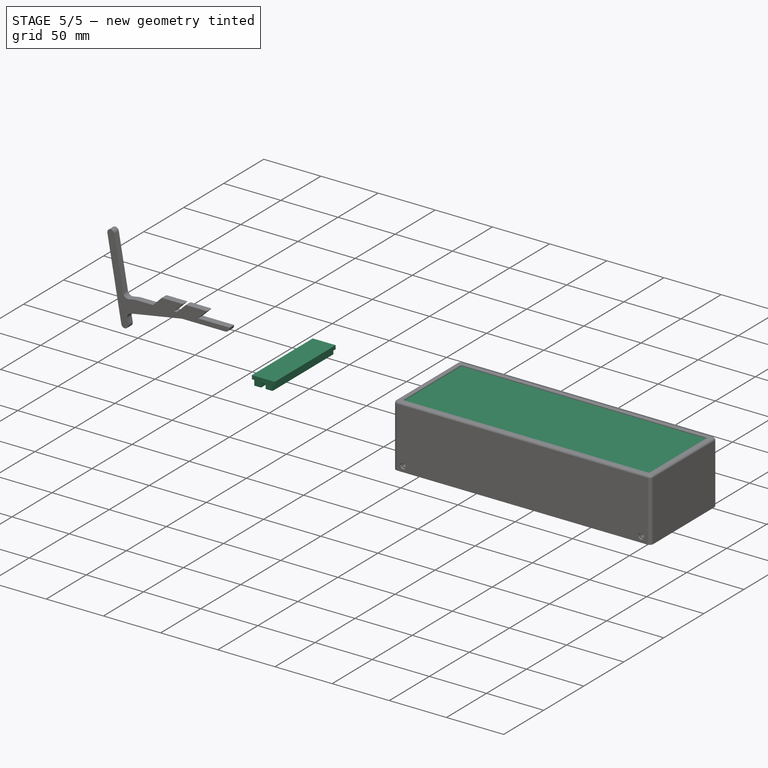
[diagram: stage 5 of 5 — iso view after this stage's code; geometry added in this stage tinted green]
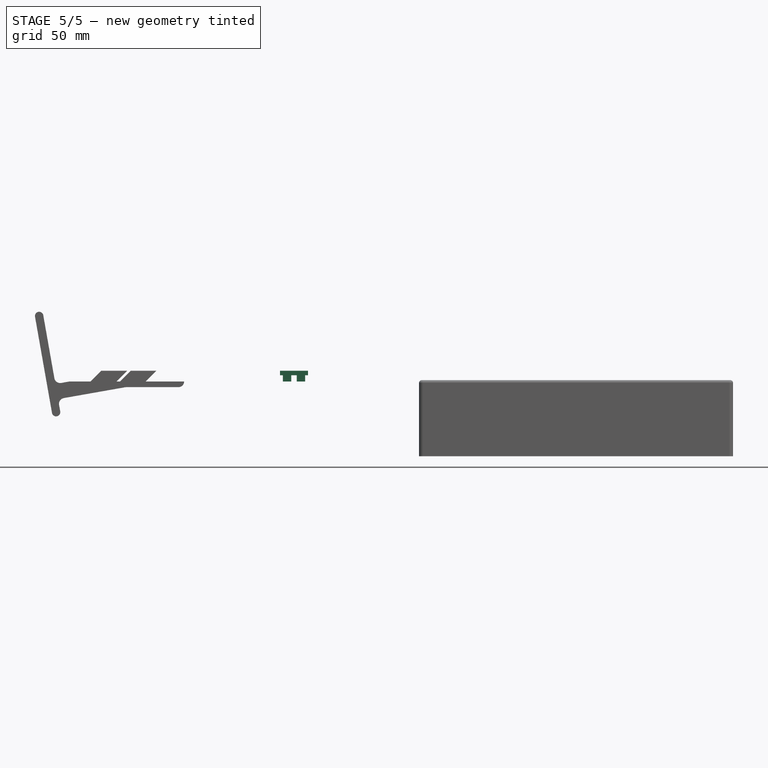
[diagram: stage 5 of 5 — front view after this stage's code; geometry added in this stage tinted green]
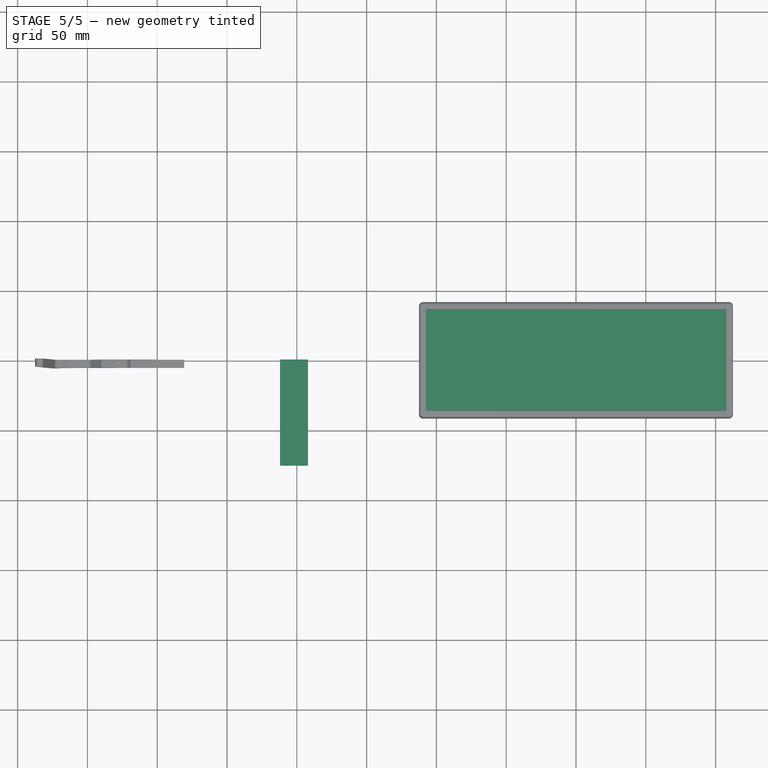
[diagram: stage 5 of 5 — top view after this stage's code; geometry added in this stage tinted green]
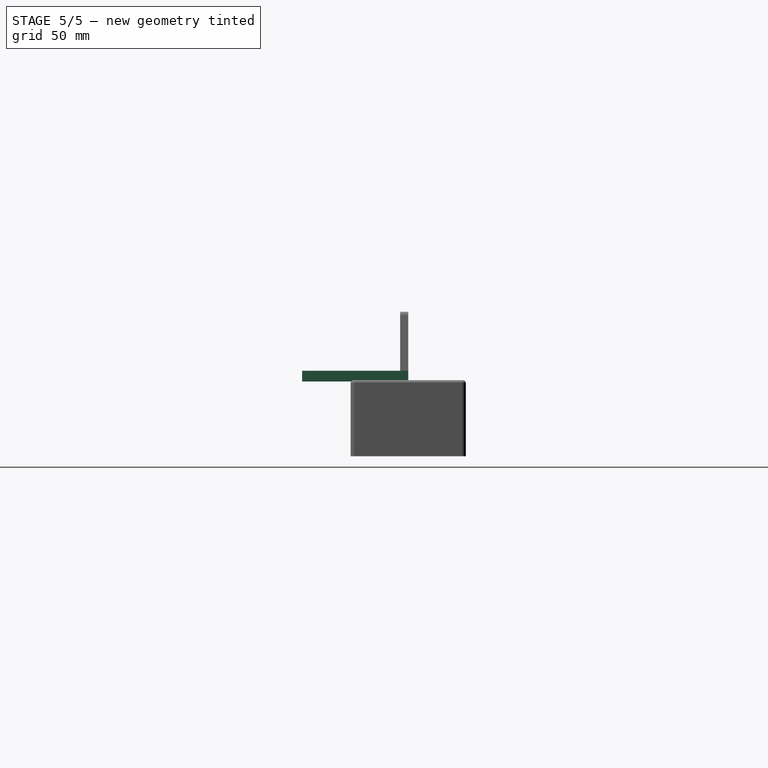
[diagram: stage 5 of 5 — right view after this stage's code; geometry added in this stage tinted green]
FEATURE [Sketcher::SketchObject] Sketch002
  ArcFitTolerance = 1e-06
  AttachmentSupport = -> [XY_Plane001]
  FullyConstrained = true
  MakeInternals = false
  MapMode = 5
  sketch-geometry (5):
    g0: LineSegment StartX=-109 StartY=-38 StartZ=0 EndX=109 EndY=-38 EndZ=0
    g1: LineSegment StartX=109 StartY=-38 StartZ=0 EndX=109 EndY=38 EndZ=0
    g2: LineSegment StartX=109 StartY=38 StartZ=0 EndX=-109 EndY=38 EndZ=0
    g3: LineSegment StartX=-109 StartY=38 StartZ=0 EndX=-109 EndY=-38 EndZ=0
    g4: GeomPoint [constr] X=0 Y=0 Z=0
  constraints (12):
    c: Coincident(g0,g1)
    c: Coincident(g1,g2)
    c: Coincident(g2,g3)
    c: Coincident(g3,g0)
    c: Horizontal(g0)
    c: Horizontal(g2)
    c: Vertical(g1)
    c: Vertical(g3)
    c: Symmetric(g2,g0,g4)
    c: Distance(g1,g3) = 218
    c: Distance(g0,g2) = 76
    c: Coincident(g4,g-1)
FEATURE [PartDesign::Pad] Pad002
  Direction = (0,0,1)
  Length = 3.25
  Length2 = 10
  Profile = -> Sketch002
  ReferenceAxis = -> Sketch002 [N_Axis]
  Refine = true
  Reversed = true
  Suppressed = false
  Type = 0
FEATURE [PartDesign::Plane] DatumPlane001
  AttachmentSupport = -> [Pad002]
  Length = 243.743
  MapMode = 5
  Placement = pos=(0,0,-3.25) rot=(1,0,0;3.14159rad)
  ResizeMode = 0
  Width = 101.743
FEATURE [PartDesign::Body] Body001  label="acrylic"
  AllowCompound = false
  Group = -> [Sketch002,Pad002,DatumPlane001]
  Origin = -> Origin001
  Tip = -> Pad002
FEATURE [PartDesign::Plane] CopyDatumPlane001
  AttachmentSupport = -> [Pad002]
  Length = 243.743
  MapMode = 5
  Placement = pos=(0,0,-3.25) rot=(1,0,0;3.14159rad)
  ResizeMode = 0
  Width = 101.743
FEATURE [Sketcher::SketchObject] Sketch003
  ArcFitTolerance = 1e-06
  AttachmentSupport = -> [CopyDatumPlane001]
  FullyConstrained = true
  MakeInternals = false
  MapMode = 5
  Placement = pos=(0,0,-3.25) rot=(1,0,0;3.14159rad)
  sketch-geometry (10):
    g0: LineSegment StartX=-107.25 StartY=-36.25 StartZ=0 EndX=107.25 EndY=-36.25 EndZ=0
    g1: LineSegment StartX=107.25 StartY=-36.25 StartZ=0 EndX=107.25 EndY=36.25 EndZ=0
    g2: LineSegment StartX=107.25 StartY=36.25 StartZ=0 EndX=-107.25 EndY=36.25 EndZ=0
    g3: LineSegment StartX=-107.25 StartY=36.25 StartZ=0 EndX=-107.25 EndY=-36.25 EndZ=0
    g4: GeomPoint [constr] X=0 Y=0 Z=0
    g5: LineSegment StartX=-109 StartY=-38 StartZ=0 EndX=109 EndY=-38 EndZ=0
    g6: LineSegment StartX=109 StartY=-38 StartZ=0 EndX=109 EndY=38 EndZ=0
    g7: LineSegment StartX=109 StartY=38 StartZ=0 EndX=-109 EndY=38 EndZ=0
    g8: LineSegment StartX=-109 StartY=38 StartZ=0 EndX=-109 EndY=-38 EndZ=0
    g9: GeomPoint [constr] X=0 Y=0 Z=0
  constraints (24):
    c: Coincident(g0,g1)
    c: Coincident(g1,g2)
    c: Coincident(g2,g3)
    c: Coincident(g3,g0)
    c: Horizontal(g0)
    c: Horizontal(g2)
    c: Vertical(g1)
    c: Vertical(g3)
    c: Symmetric(g2,g0,g4)
    c: Distance(g1,g3) = 214.5
    c: Distance(g0,g2) = 72.5
    c: Coincident(g4,g-1)
    c: Coincident(g5,g6)
    c: Coincident(g6,g7)
    c: Coincident(g7,g8)
    c: Coincident(g8,g5)
    c: Horizontal(g5)
    c: Horizontal(g7)
    c: Vertical(g6)
    c: Vertical(g8)
    c: Symmetric(g7,g5,g9)
    c: Distance(g6,g8) = 218
    c: Distance(g5,g7) = 76
    c: Coincident(g9,g4)
FEATURE [PartDesign::Pad] Pad003
  Direction = (0,0,-1)
  Length = 28
  Length2 = 10
  Placement = pos=(0,0,-3.25) rot=(1,0,0;3.14159rad)
  Profile = -> Sketch003
  ReferenceAxis = -> Sketch003 [N_Axis]
  Refine = true
  Suppressed = false
  Type = 0
FEATURE [PartDesign::Body] Body002  label="spacer"
  AllowCompound = false
  Group = -> [CopyDatumPlane001,Sketch003,Pad003]
  Origin = -> Origin002
  Tip = -> Pad003
FEATURE [PartDesign::Plane] CopyDatumPlane002
  AttachmentSupport = -> [Pad003]
  Length = 243.989
  MapMode = 5
  Placement = pos=(0,0,-31.25) rot=(1,0,0;3.14159rad)
  ResizeMode = 0
  Width = 101.989
FEATURE [Sketcher::SketchObject] Sketch004
  ArcFitTolerance = 1e-06
  AttachmentSupport = -> [CopyDatumPlane002]
  FullyConstrained = true
  MakeInternals = false
  MapMode = 5
  Placement = pos=(0,0,-31.25) rot=(1,0,0;3.14159rad)
  sketch-geometry (5):
    g0: LineSegment StartX=-109.1 StartY=-38.1 StartZ=0 EndX=109.1 EndY=-38.1 EndZ=0
    g1: LineSegment StartX=109.1 StartY=-38.1 StartZ=0 EndX=109.1 EndY=38.1 EndZ=0
    g2: LineSegment StartX=109.1 StartY=38.1 StartZ=0 EndX=-109.1 EndY=38.1 EndZ=0
    g3: LineSegment StartX=-109.1 StartY=38.1 StartZ=0 EndX=-109.1 EndY=-38.1 EndZ=0
    g4: GeomPoint [constr] X=0 Y=0 Z=0
  constraints (12):
    c: Coincident(g0,g1)
    c: Coincident(g1,g2)
    c: Coincident(g2,g3)
    c: Coincident(g3,g0)
    c: Horizontal(g0)
    c: Horizontal(g2)
    c: Vertical(g1)
    c: Vertical(g3)
    c: Symmetric(g2,g0,g4)
    c: Distance(g1,g3) = 218.2
    c: Distance(g0,g2) = 76.2
    c: Coincident(g4,g-1)
FEATURE [PartDesign::Pad] Pad004
  AlongSketchNormal = false
  Direction = (0,0,-1)
  Length = 1.75
  Length2 = 10
  Placement = pos=(0,3.4e-15,-31.25) rot=(1,0,0;3.14159rad)
  Profile = -> Sketch004
  ReferenceAxis = -> Sketch004 [N_Axis]
  Refine = true
  Suppressed = false
  Type = 0
FEATURE [Sketcher::SketchObject] Sketch005
  ArcFitTolerance = 1e-06
  AttachmentSupport = -> [Pad004]
  ExternalGeometry = -> [Pad004]
  FullyConstrained = true
  MakeInternals = false
  MapMode = 5
  Placement = pos=(0,3.4e-15,-33) rot=(1,0,0;3.14159rad)
  sketch-geometry (9):
    g0: LineSegment [constr] StartX=-109.1 StartY=38.1 StartZ=0 EndX=-109.1 EndY=-38.1 EndZ=0
    g1: LineSegment [constr] StartX=-109.1 StartY=-38.1 StartZ=0 EndX=109.1 EndY=-38.1 EndZ=0
    g2: LineSegment [constr] StartX=109.1 StartY=-38.1 StartZ=0 EndX=109.1 EndY=38.1 EndZ=0
    g3: LineSegment [constr] StartX=109.1 StartY=38.1 StartZ=0 EndX=-109.1 EndY=38.1 EndZ=0
    g4: LineSegment StartX=-107.1 StartY=-36.1 StartZ=0 EndX=107.1 EndY=-36.1 EndZ=0
    g5: LineSegment StartX=107.1 StartY=-36.1 StartZ=0 EndX=107.1 EndY=36.1 EndZ=0
    g6: LineSegment StartX=107.1 StartY=36.1 StartZ=0 EndX=-107.1 EndY=36.1 EndZ=0
    g7: LineSegment StartX=-107.1 StartY=36.1 StartZ=0 EndX=-107.1 EndY=-36.1 EndZ=0
    g8: GeomPoint [constr] X=0 Y=0 Z=0
  constraints (22):
    c: Coincident(g0,g1)
    c: Coincident(g1,g2)
    c: Coincident(g2,g3)
    c: Coincident(g3,g0)
    c: Vertical(g0)
    c: Vertical(g2)
    c: Horizontal(g1)
    c: Horizontal(g3)
    c: Coincident(g0,g-5)
    c: Coincident(g1,g-6)
    c: Coincident(g4,g5)
    c: Coincident(g5,g6)
    c: Coincident(g6,g7)
    c: Coincident(g7,g4)
    c: Horizontal(g4)
    c: Horizontal(g6)
    c: Vertical(g5)
    c: Vertical(g7)
    c: Symmetric(g6,g4,g8)
    c: Distance(g5,g7) = 214.2
    c: Distance(g4,g6) = 72.2
    c: Coincident(g8,g-1)
FEATURE [PartDesign::Pad] Pad005
  BaseFeature = -> Pad004
  Direction = (0,0,-1)
  Length = 6.5
  Length2 = 10
  Placement = pos=(0,3.4e-15,-31.25) rot=(1,0,0;3.14159rad)
  Profile = -> Sketch005
  ReferenceAxis = -> Sketch005 [N_Axis]
  Refine = true
  Suppressed = false
  Type = 0
FEATURE [Sketcher::SketchObject] Sketch006
  ArcFitTolerance = 1e-06
  AttachmentSupport = -> [Pad005]
  ExternalGeometry = -> [Pad005]
  FullyConstrained = true
  MakeInternals = false
  MapMode = 5
  Placement = pos=(0,3.4e-15,-39.5) rot=(1,0,0;3.14159rad)
  sketch-geometry (12):
    g0: LineSegment [constr] StartX=-107.1 StartY=36.1 StartZ=0 EndX=-107.1 EndY=-36.1 EndZ=0
    g1: LineSegment [constr] StartX=-107.1 StartY=-36.1 StartZ=0 EndX=-97.1 EndY=-36.1 EndZ=0
    g2: LineSegment [constr] StartX=-97.1 StartY=-36.1 StartZ=0 EndX=-97.1 EndY=36.1 EndZ=0
    g3: LineSegment [constr] StartX=-97.1 StartY=36.1 StartZ=0 EndX=-107.1 EndY=36.1 EndZ=0
    g4: LineSegment [constr] StartX=107.1 StartY=36.1 StartZ=0 EndX=87.1 EndY=36.1 EndZ=0
    g5: LineSegment [constr] StartX=87.1 StartY=36.1 StartZ=0 EndX=87.1 EndY=-36.1 EndZ=0
    g6: LineSegment [constr] StartX=87.1 StartY=-36.1 StartZ=0 EndX=107.1 EndY=-36.1 EndZ=0
    g7: LineSegment [constr] StartX=107.1 StartY=-36.1 StartZ=0 EndX=107.1 EndY=36.1 EndZ=0
    g8: LineSegment StartX=-97.1 StartY=36.1 StartZ=0 EndX=-97.1 EndY=-36.1 EndZ=0
    g9: LineSegment StartX=-97.1 StartY=-36.1 StartZ=0 EndX=87.1 EndY=-36.1 EndZ=0
    g10: LineSegment StartX=87.1 StartY=-36.1 StartZ=0 EndX=87.1 EndY=36.1 EndZ=0
    g11: LineSegment StartX=87.1 StartY=36.1 StartZ=0 EndX=-97.1 EndY=36.1 EndZ=0
  constraints (32):
    c: Coincident(g0,g1)
    c: Coincident(g1,g2)
    c: Coincident(g2,g3)
    c: Coincident(g3,g0)
    c: Vertical(g0)
    c: Vertical(g2)
    c: Horizontal(g1)
    c: Horizontal(g3)
    c: Distance(g0,g2) = 10
    c: Coincident(g0,g-4)
    c: PointOnObject(g1,g-5)
    c: Coincident(g4,g5)
    c: Coincident(g5,g6)
    c: Coincident(g6,g7)
    c: Coincident(g7,g4)
    c: Horizontal(g4)
    c: Horizontal(g6)
    c: Vertical(g5)
    c: Vertical(g7)
    c: Distance(g5,g7) = 20
    c: Coincident(g4,g-6)
    c: PointOnObject(g5,g-5)
    c: Coincident(g8,g9)
    c: Coincident(g9,g10)
    c: Coincident(g10,g11)
    c: Coincident(g11,g8)
    c: Vertical(g8)
    c: Vertical(g10)
    c: Horizontal(g9)
    c: Horizontal(g11)
    c: Coincident(g8,g2)
    c: Coincident(g9,g5)
FEATURE [PartDesign::Pad] Pad006
  BaseFeature = -> Pad005
  Direction = (0,0,-1)
  Length = 12
  Length2 = 10
  Placement = pos=(0,3.4e-15,-31.25) rot=(1,0,0;3.14159rad)
  Profile = -> Sketch006
  ReferenceAxis = -> Sketch006 [N_Axis]
  Refine = true
  Suppressed = false
  Type = 0
FEATURE [Sketcher::SketchObject] Sketch028
  ArcFitTolerance = 1e-06
  AttachmentSupport = -> [XZ_Plane005]
  FullyConstrained = true
  MakeInternals = false
  MapMode = 5
  Placement = pos=(0,0,0) rot=(1,0,0;1.5708rad)
  sketch-geometry (14):
    g0: LineSegment StartX=-200 StartY=0 StartZ=0 EndX=-200 EndY=4.5 EndZ=0
    g1: LineSegment StartX=-200 StartY=4.5 StartZ=0 EndX=-194 EndY=4.5 EndZ=0
    g2: LineSegment StartX=-194 StartY=4.5 StartZ=0 EndX=-194 EndY=0 EndZ=0
    g3: LineSegment StartX=-194 StartY=0 StartZ=0 EndX=-200 EndY=0 EndZ=0
    g4: LineSegment [constr] StartX=-200 StartY=0 StartZ=0 EndX=-204 EndY=0 EndZ=0
    g5: LineSegment StartX=-204 StartY=0 StartZ=0 EndX=-204 EndY=4.5 EndZ=0
    g6: LineSegment StartX=-204 StartY=4.5 StartZ=0 EndX=-210 EndY=4.5 EndZ=0
    g7: LineSegment StartX=-210 StartY=4.5 StartZ=0 EndX=-210 EndY=0 EndZ=0
    g8: LineSegment StartX=-210 StartY=0 StartZ=0 EndX=-204 EndY=0 EndZ=0
    g9: LineSegment [constr] StartX=-194 StartY=4.5 StartZ=0 EndX=-192 EndY=4.5 EndZ=0
    g10: LineSegment StartX=-192 StartY=4.5 StartZ=0 EndX=-192 EndY=7.75 EndZ=0
    g11: LineSegment StartX=-192 StartY=7.75 StartZ=0 EndX=-212 EndY=7.75 EndZ=0
    g12: LineSegment StartX=-212 StartY=7.75 StartZ=0 EndX=-212 EndY=4.5 EndZ=0
    g13: LineSegment StartX=-212 StartY=4.5 StartZ=0 EndX=-192 EndY=4.5 EndZ=0
  constraints (40):
    c: Coincident(g0,g1)
    c: Coincident(g1,g2)
    c: Coincident(g2,g3)
    c: Coincident(g3,g0)
    c: Vertical(g0)
    c: Vertical(g2)
    c: Horizontal(g1)
    c: Horizontal(g3)
    c: Distance(g0,g2) = 6
    c: Distance(g1,g3) = 4.5
    c: PointOnObject(g0,g-1)
    c: DistanceX(g0,g-1) = 200
    c: Distance(g4) = 4
    c: Coincident(g4,g0)
    c: PointOnObject(g4,g-1)
    c: Coincident(g5,g6)
    c: Coincident(g6,g7)
    c: Coincident(g7,g8)
    c: Coincident(g8,g5)
    c: Vertical(g5)
    c: Vertical(g7)
    c: Horizontal(g6)
    c: Horizontal(g8)
    c: Distance(g5,g7) = 6
    c: Distance(g6,g8) = 4.5
    c: Coincident(g5,g4)
    c: Distance(g9) = 2
    c: Coincident(g9,g1)
    c: Horizontal(g9)
    c: Coincident(g10,g11)
    c: Coincident(g11,g12)
    c: Coincident(g12,g13)
    c: Coincident(g13,g10)
    c: Vertical(g10)
    c: Vertical(g12)
    c: Horizontal(g11)
    c: Horizontal(g13)
    c: Distance(g10,g12) = 20
    c: Distance(g11,g13) = 3.25
    c: Coincident(g10,g9)
FEATURE [PartDesign::Pad] Pad013
  Direction = (0,-1,2e-16)
  Length = 76
  Length2 = 10
  Placement = pos=(0,0,0) rot=(1,0,0;1.5708rad)
  Profile = -> Sketch028
  ReferenceAxis = -> Sketch028 [N_Axis]
  Refine = true
  Suppressed = false
  Type = 0
FEATURE [PartDesign::Plane] DatumPlane026
  AttachmentSupport = -> [Pocket016]
  Length = 98.595
  MapMode = 5
  Placement = pos=(-109.5,0,0) rot=(0.57735,0.57735,0.57735;2.0944rad)
  ResizeMode = 0
  Width = 94.595
FEATURE [Sketcher::SketchObject] Sketch044
  ArcFitTolerance = 1e-06
  AttachmentSupport = -> [Pocket016]
  ExternalGeometry = -> [Pocket016]
  FullyConstrained = true
  MakeInternals = false
  MapMode = 5
  Placement = pos=(-109.5,0,0) rot=(0.57735,0.57735,0.57735;2.0944rad)
  sketch-geometry (9):
    g0: GeomPoint [constr] X=0 Y=-53.5 Z=0
    g1: LineSegment [constr] StartX=0 StartY=-53.5 StartZ=0 EndX=3.25 EndY=-53.5 EndZ=0
    g2: LineSegment [constr] StartX=3.25 StartY=-53.5 StartZ=0 EndX=3.25 EndY=-51.5 EndZ=0
    g3: LineSegment [constr] StartX=3.25 StartY=-51.5 StartZ=0 EndX=0 EndY=-51.5 EndZ=0
    g4: LineSegment [constr] StartX=0 StartY=-51.5 StartZ=0 EndX=0 EndY=-53.5 EndZ=0
    g5: LineSegment StartX=3.25 StartY=-51.5 StartZ=0 EndX=3.25 EndY=-48.5 EndZ=0
    g6: LineSegment StartX=3.25 StartY=-48.5 StartZ=0 EndX=-3.25 EndY=-48.5 EndZ=0
    g7: LineSegment StartX=-3.25 StartY=-48.5 StartZ=0 EndX=-3.25 EndY=-51.5 EndZ=0
    g8: LineSegment StartX=-3.25 StartY=-51.5 StartZ=0 EndX=3.25 EndY=-51.5 EndZ=0
  constraints (23):
    c: Symmetric(g-3,g-3,g0)
    c: Coincident(g1,g2)
    c: Coincident(g2,g3)
    c: Coincident(g3,g4)
    c: Coincident(g4,g1)
    c: Horizontal(g1)
    c: Horizontal(g3)
    c: Vertical(g2)
    c: Vertical(g4)
    c: Distance(g2,g4) = 3.25
    c: Distance(g1,g3) = 2
    c: Coincident(g1,g0)
    c: Coincident(g5,g6)
    c: Coincident(g6,g7)
    c: Coincident(g7,g8)
    c: Coincident(g8,g5)
    c: Vertical(g5)
    c: Vertical(g7)
    c: Horizontal(g6)
    c: Horizontal(g8)
    c: Distance(g5,g7) = 6.5
    c: Distance(g6,g8) = 3
    c: Coincident(g5,g2)
FEATURE [PartDesign::Pocket] Pocket017
  BaseFeature = -> Pocket016
  Direction = (-1,0,0)
  Length = 1.5
  Length2 = 5
  Profile = -> Sketch044
  ReferenceAxis = -> Sketch044 [N_Axis]
  Refine = true
  Suppressed = false
  Type = 0
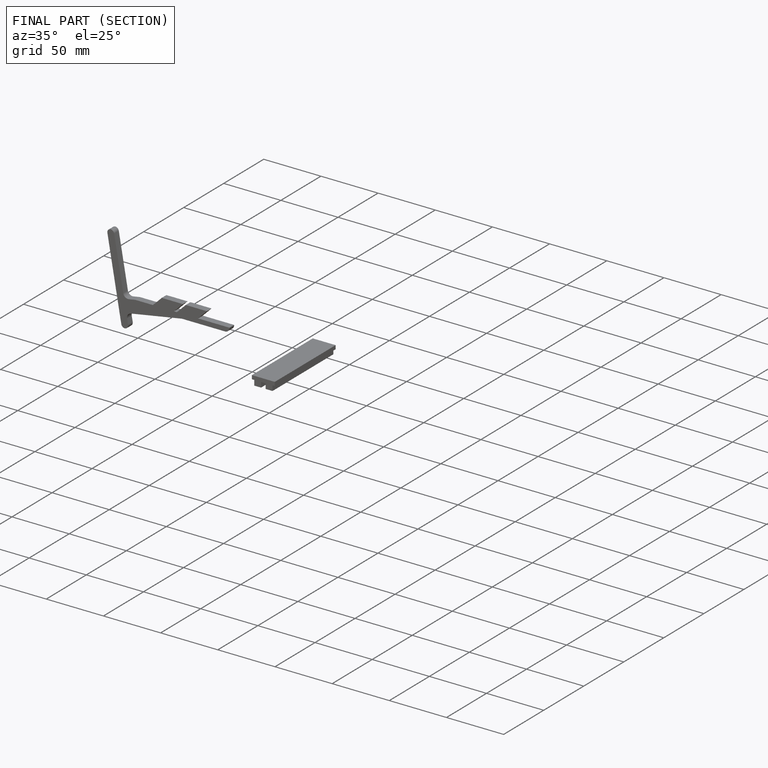
[diagram: finished part — half-section view (interior)]
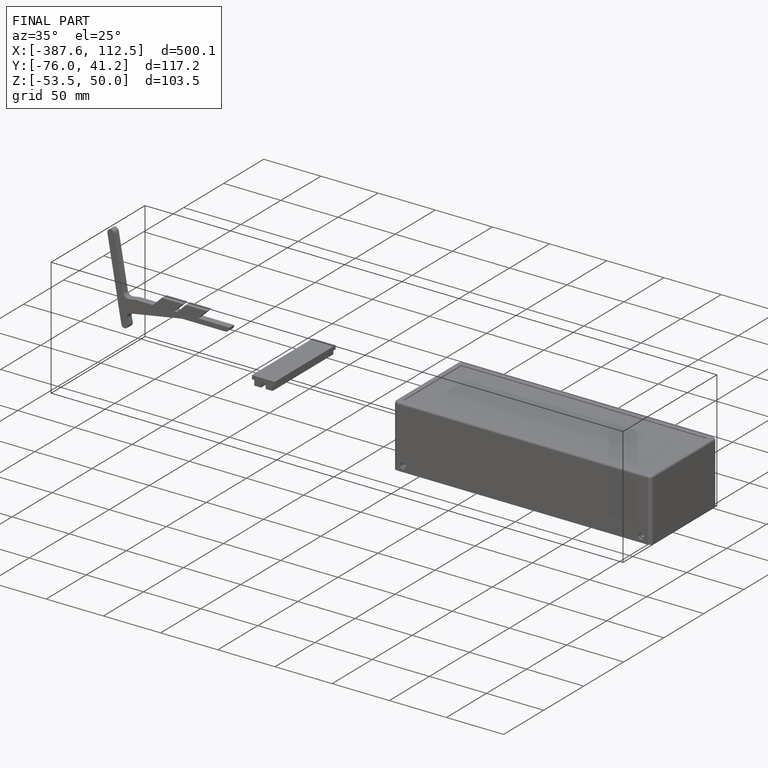
[diagram: finished part — iso view with bounding-box wireframe]
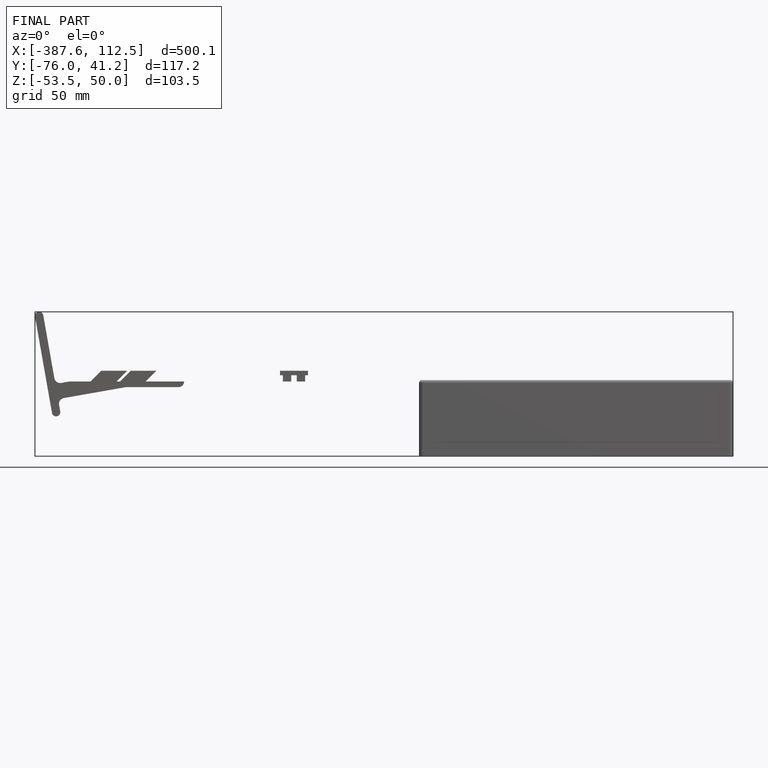
[diagram: finished part — front view with bounding-box wireframe]
